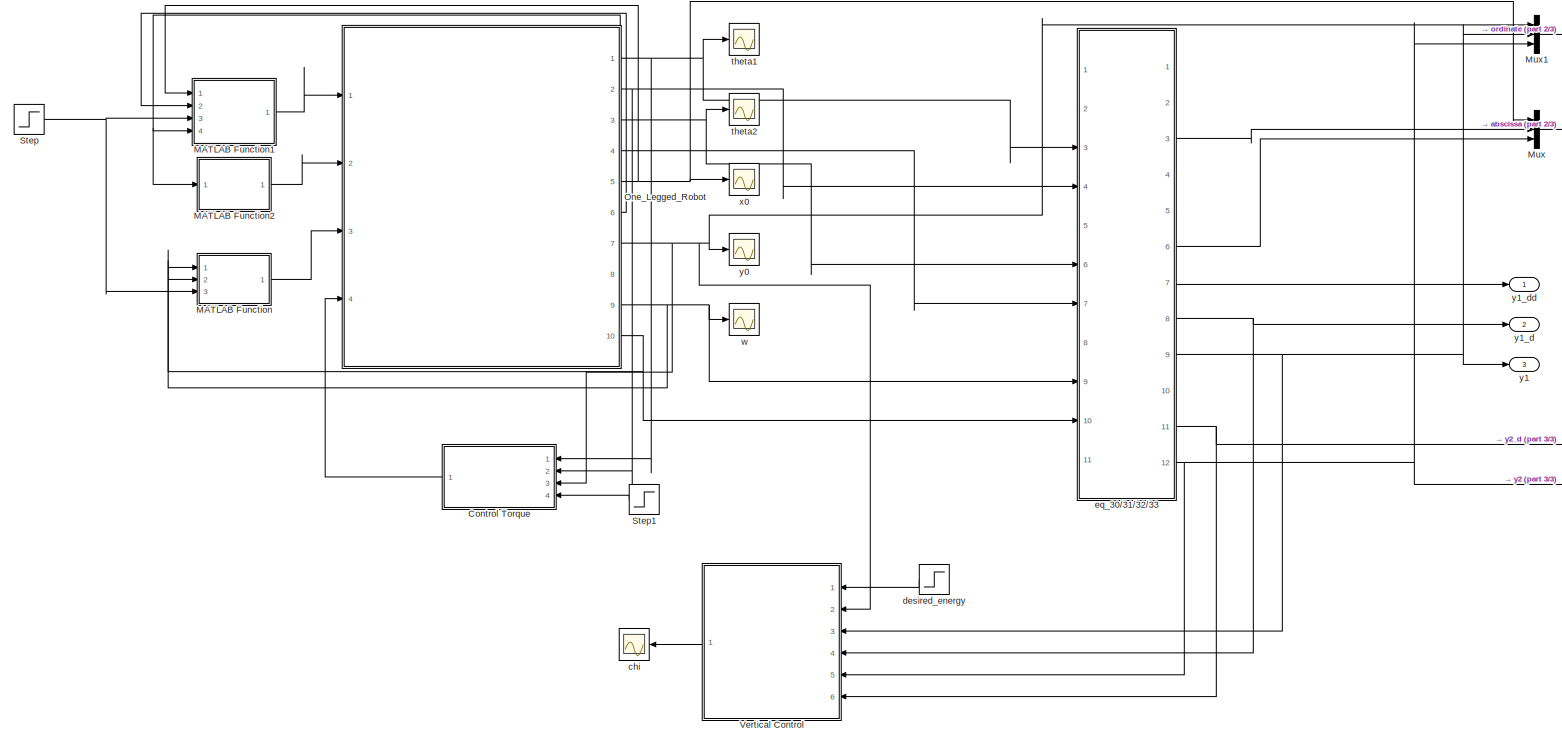
[diagram: root canvas - part 1/3, most of the canvas]
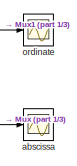
[diagram: root canvas - part 2/3, top right region]
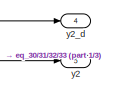
[diagram: root canvas - part 3/3, middle right region]
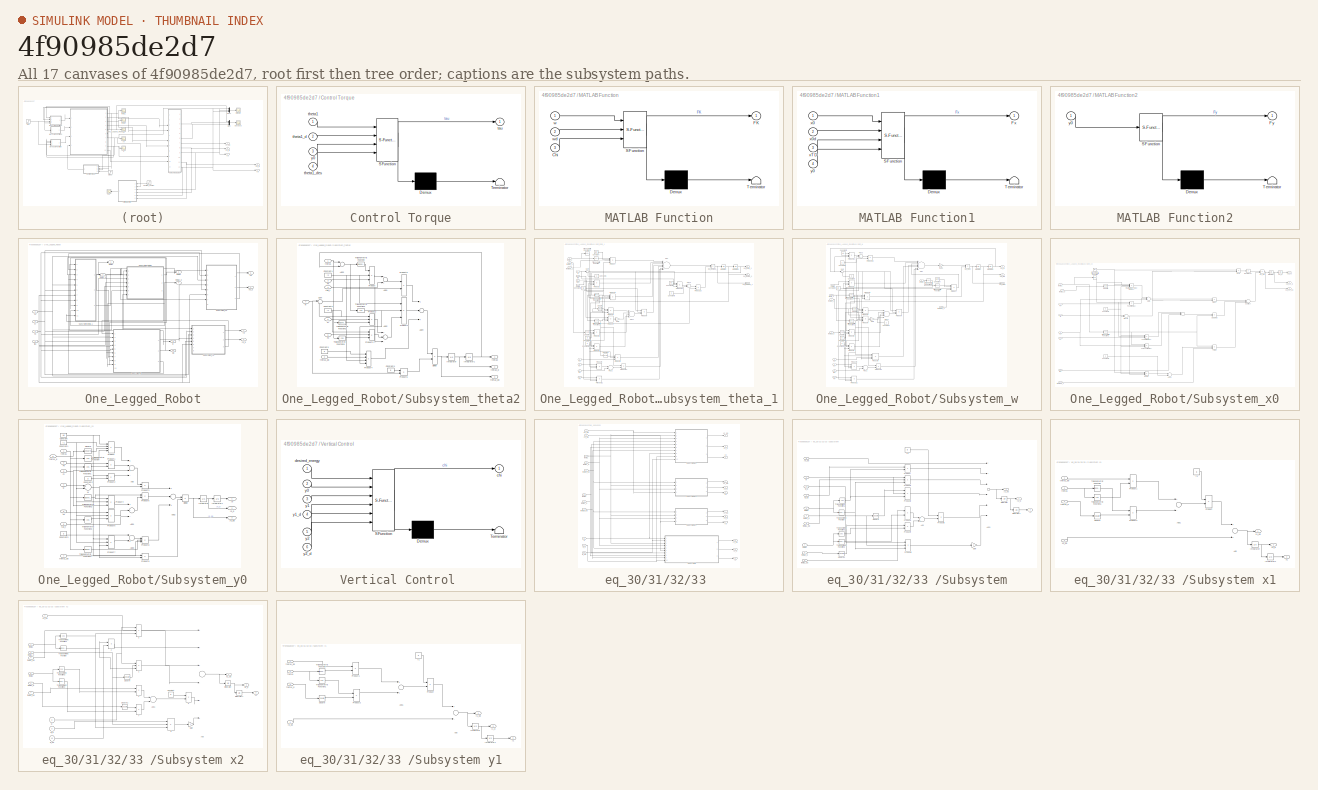
[diagram: thumbnail index - all 17 canvases of the model, root first then tree order]
MODEL slx_4f90985de2d7
KIND model
CONFIG AbsTol = auto
CONFIG EnableMultiTasking = off
CONFIG FixedStep = auto
CONFIG MaxStep = auto
CONFIG MinStep = auto
CONFIG RelTol = 1e-3
CONFIG SampleTimeConstraint = Unconstrained
CONFIG Solver = VariableStepAuto
CONFIG SolverName = VariableStepAuto
CONFIG StartTime = 0.0
CONFIG StopTime = 10.0
BLOCK [SubSystem] Control Torque
  ErrorFcn = Stateflow.Translate.translate
  PermitHierarchicalResolution = ExplicitOnly
  Ports = [4, 1]
  RequestExecContextInheritance = off
  SFBlockType = MATLAB Function
  TreatAsAtomicUnit = on
BLOCK [Demux] Control Torque/ Demux 
  Outputs = 1
  Ports = [1, 1]
BLOCK [S-Function] Control Torque/ SFunction 
  EnableBusSupport = on
  FunctionName = sf_sfun
  PortCounts = [4 2]
  Ports = [4, 2]
  SFcnIsStateOwnerBlock = off
  SFunctionDeploymentMode = off
  Tag = Stateflow S-Function 4
BLOCK [Terminator] Control Torque/ Terminator 
BLOCK [Outport] Control Torque/tau
  IconDisplay = Port number
BLOCK [Inport] Control Torque/theta1
  IconDisplay = Port number
BLOCK [Inport] Control Torque/theta1_d
  IconDisplay = Port number
  Port = 2
BLOCK [Inport] Control Torque/theta1_des
  IconDisplay = Port number
  Port = 4
BLOCK [Inport] Control Torque/y0
  IconDisplay = Port number
  Port = 3
BLOCK [SubSystem] MATLAB Function
  ErrorFcn = Stateflow.Translate.translate
  PermitHierarchicalResolution = ExplicitOnly
  Ports = [3, 1]
  RequestExecContextInheritance = off
  SFBlockType = MATLAB Function
  TreatAsAtomicUnit = on
BLOCK [Demux] MATLAB Function/ Demux 
  Outputs = 1
  Ports = [1, 1]
BLOCK [S-Function] MATLAB Function/ SFunction 
  EnableBusSupport = on
  FunctionName = sf_sfun
  PortCounts = [3 2]
  Ports = [3, 2]
  SFcnIsStateOwnerBlock = off
  SFunctionDeploymentMode = off
  Tag = Stateflow S-Function 2
BLOCK [Terminator] MATLAB Function/ Terminator 
BLOCK [Inport] MATLAB Function/Chi
  IconDisplay = Port number
  Port = 3
BLOCK [Outport] MATLAB Function/FK
  IconDisplay = Port number
BLOCK [Inport] MATLAB Function/w
  IconDisplay = Port number
BLOCK [Inport] MATLAB Function/wd
  IconDisplay = Port number
  Port = 2
BLOCK [SubSystem] MATLAB Function1
  ErrorFcn = Stateflow.Translate.translate
  PermitHierarchicalResolution = ExplicitOnly
  Ports = [4, 1]
  RequestExecContextInheritance = off
  SFBlockType = MATLAB Function
  TreatAsAtomicUnit = on
BLOCK [Demux] MATLAB Function1/ Demux 
  Outputs = 1
  Ports = [1, 1]
BLOCK [S-Function] MATLAB Function1/ SFunction 
  EnableBusSupport = on
  FunctionName = sf_sfun
  PortCounts = [4 2]
  Ports = [4, 2]
  SFcnIsStateOwnerBlock = off
  SFunctionDeploymentMode = off
  Tag = Stateflow S-Function 1
BLOCK [Terminator] MATLAB Function1/ Terminator 
BLOCK [Outport] MATLAB Function1/Fx
  IconDisplay = Port number
BLOCK [Inport] MATLAB Function1/x0
  IconDisplay = Port number
BLOCK [Inport] MATLAB Function1/x0d
  IconDisplay = Port number
  Port = 2
BLOCK [Inport] MATLAB Function1/xTD
  IconDisplay = Port number
  Port = 3
BLOCK [Inport] MATLAB Function1/y0
  IconDisplay = Port number
  Port = 4
BLOCK [SubSystem] MATLAB Function2
  ErrorFcn = Stateflow.Translate.translate
  PermitHierarchicalResolution = ExplicitOnly
  Ports = [1, 1]
  RequestExecContextInheritance = off
  SFBlockType = MATLAB Function
  TreatAsAtomicUnit = on
BLOCK [Demux] MATLAB Function2/ Demux 
  Outputs = 1
  Ports = [1, 1]
BLOCK [S-Function] MATLAB Function2/ SFunction 
  EnableBusSupport = on
  FunctionName = sf_sfun
  PortCounts = [1 2]
  Ports = [1, 2]
  SFcnIsStateOwnerBlock = off
  SFunctionDeploymentMode = off
  Tag = Stateflow S-Function 3
BLOCK [Terminator] MATLAB Function2/ Terminator 
BLOCK [Outport] MATLAB Function2/Fy
  IconDisplay = Port number
BLOCK [Inport] MATLAB Function2/y0
  IconDisplay = Port number
BLOCK [Mux] Mux
  DisplayOption = bar
  Inputs = 3
  Ports = [3, 1]
BLOCK [Mux] Mux1
  DisplayOption = bar
  Inputs = 3
  Ports = [3, 1]
BLOCK [SubSystem] One_Legged_Robot
  Ports = [4, 10]
  RequestExecContextInheritance = off
BLOCK [Inport] One_Legged_Robot/Fk
  IconDisplay = Port number
  Port = 3
BLOCK [Inport] One_Legged_Robot/Fx
  IconDisplay = Port number
BLOCK [Inport] One_Legged_Robot/Fy
  IconDisplay = Port number
  Port = 2
BLOCK [SubSystem] One_Legged_Robot/Subsystem_theta2
  Ports = [7, 3]
  RequestExecContextInheritance = off
BLOCK [Sum] One_Legged_Robot/Subsystem_theta2/Add1
  InputSameDT = off
  OutDataTypeStr = Inherit: Inherit via internal rule
  Ports = [2, 1]
  SaturateOnIntegerOverflow = off
BLOCK [Sum] One_Legged_Robot/Subsystem_theta2/Add2
  InputSameDT = off
  Inputs = +--
  OutDataTypeStr = Inherit: Inherit via internal rule
  Ports = [3, 1]
  SaturateOnIntegerOverflow = off
BLOCK [Sum] One_Legged_Robot/Subsystem_theta2/Add3
  InputSameDT = off
  Inputs = -+
  OutDataTypeStr = Inherit: Inherit via internal rule
  Ports = [2, 1]
  SaturateOnIntegerOverflow = off
BLOCK [Sum] One_Legged_Robot/Subsystem_theta2/Add4
  InputSameDT = off
  Inputs = +-+
  OutDataTypeStr = Inherit: Inherit via internal rule
  Ports = [3, 1]
  SaturateOnIntegerOverflow = off
BLOCK [Constant] One_Legged_Robot/Subsystem_theta2/Constant1
  Value = r2
BLOCK [Constant] One_Legged_Robot/Subsystem_theta2/Constant2
  Value = r1
BLOCK [Constant] One_Legged_Robot/Subsystem_theta2/Constant3
  Value = I1
BLOCK [Constant] One_Legged_Robot/Subsystem_theta2/Constant4
  Value = I2
BLOCK [Product] One_Legged_Robot/Subsystem_theta2/Divide
  InputSameDT = off
  Inputs = */
  OutDataTypeStr = Inherit: Inherit via internal rule
  Ports = [2, 1]
  RndMeth = Floor
  SaturateOnIntegerOverflow = off
BLOCK [Inport] One_Legged_Robot/Subsystem_theta2/Fk
  IconDisplay = Port number
  Port = 3
BLOCK [Inport] One_Legged_Robot/Subsystem_theta2/Fx
  IconDisplay = Port number
  Port = 6
BLOCK [Inport] One_Legged_Robot/Subsystem_theta2/Fy
  IconDisplay = Port number
  Port = 5
BLOCK [Integrator] One_Legged_Robot/Subsystem_theta2/Integrator
  InitialCondition = ini_theta2_d
  Ports = [1, 1]
BLOCK [Integrator] One_Legged_Robot/Subsystem_theta2/Integrator1
  InitialCondition = ini_theta2
  LimitOutput = on
  LowerSaturationLimit = -pi/4
  Ports = [1, 1]
  UpperSaturationLimit = pi/4
BLOCK [Product] One_Legged_Robot/Subsystem_theta2/Product
  InputSameDT = off
  Inputs = 3
  OutDataTypeStr = Inherit: Inherit via internal rule
  Ports = [3, 1]
  RndMeth = Floor
  SaturateOnIntegerOverflow = off
BLOCK [Product] One_Legged_Robot/Subsystem_theta2/Product1
  InputSameDT = off
  Inputs = 3
  OutDataTypeStr = Inherit: Inherit via internal rule
  Ports = [3, 1]
  RndMeth = Floor
  SaturateOnIntegerOverflow = off
BLOCK [Product] One_Legged_Robot/Subsystem_theta2/Product2
  InputSameDT = off
  Inputs = 3
  OutDataTypeStr = Inherit: Inherit via internal rule
  Ports = [3, 1]
  RndMeth = Floor
  SaturateOnIntegerOverflow = off
BLOCK [Product] One_Legged_Robot/Subsystem_theta2/Product3
  InputSameDT = off
  Inputs = 3
  OutDataTypeStr = Inherit: Inherit via internal rule
  Ports = [3, 1]
  RndMeth = Floor
  SaturateOnIntegerOverflow = off
BLOCK [Product] One_Legged_Robot/Subsystem_theta2/Product4
  InputSameDT = off
  Inputs = 4
  OutDataTypeStr = Inherit: Inherit via internal rule
  Ports = [4, 1]
  RndMeth = Floor
  SaturateOnIntegerOverflow = off
BLOCK [Product] One_Legged_Robot/Subsystem_theta2/Product5
  InputSameDT = off
  OutDataTypeStr = Inherit: Inherit via internal rule
  Ports = [2, 1]
  RndMeth = Floor
  SaturateOnIntegerOverflow = off
BLOCK [Product] One_Legged_Robot/Subsystem_theta2/Product6
  InputSameDT = off
  OutDataTypeStr = Inherit: Inherit via internal rule
  Ports = [2, 1]
  RndMeth = Floor
  SaturateOnIntegerOverflow = off
BLOCK [Sum] One_Legged_Robot/Subsystem_theta2/Sum
  IconShape = round
  InputSameDT = off
  Inputs = |+-
  OutDataTypeStr = Inherit: Inherit via internal rule
  Ports = [2, 1]
  SaturateOnIntegerOverflow = off
BLOCK [Trigonometry] One_Legged_Robot/Subsystem_theta2/Trigonometric Function
  Ports = [1, 1]
BLOCK [Trigonometry] One_Legged_Robot/Subsystem_theta2/Trigonometric Function1
  Operator = cos
  Ports = [1, 1]
BLOCK [Trigonometry] One_Legged_Robot/Subsystem_theta2/Trigonometric Function2
  Ports = [1, 1]
BLOCK [Trigonometry] One_Legged_Robot/Subsystem_theta2/Trigonometric Function3
  Operator = cos
  Ports = [1, 1]
BLOCK [Inport] One_Legged_Robot/Subsystem_theta2/tao_t
  IconDisplay = Port number
  Port = 4
BLOCK [Inport] One_Legged_Robot/Subsystem_theta2/theta1
  IconDisplay = Port number
BLOCK [Inport] One_Legged_Robot/Subsystem_theta2/theta1_dd
  IconDisplay = Port number
  Port = 2
BLOCK [Outport] One_Legged_Robot/Subsystem_theta2/theta2
  IconDisplay = Port number
  VectorParamsAs1DForOutWhenUnconnected = off
BLOCK [Outport] One_Legged_Robot/Subsystem_theta2/theta2_d
  IconDisplay = Port number
  Port = 2
  VectorParamsAs1DForOutWhenUnconnected = off
BLOCK [Outport] One_Legged_Robot/Subsystem_theta2/theta2_dd
  IconDisplay = Port number
  Port = 3
  VectorParamsAs1DForOutWhenUnconnected = off
BLOCK [Inport] One_Legged_Robot/Subsystem_theta2/w
  IconDisplay = Port number
  Port = 7
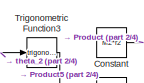
[diagram: One_Legged_Robot/Subsystem_theta_1 - part 1/4, top left region]
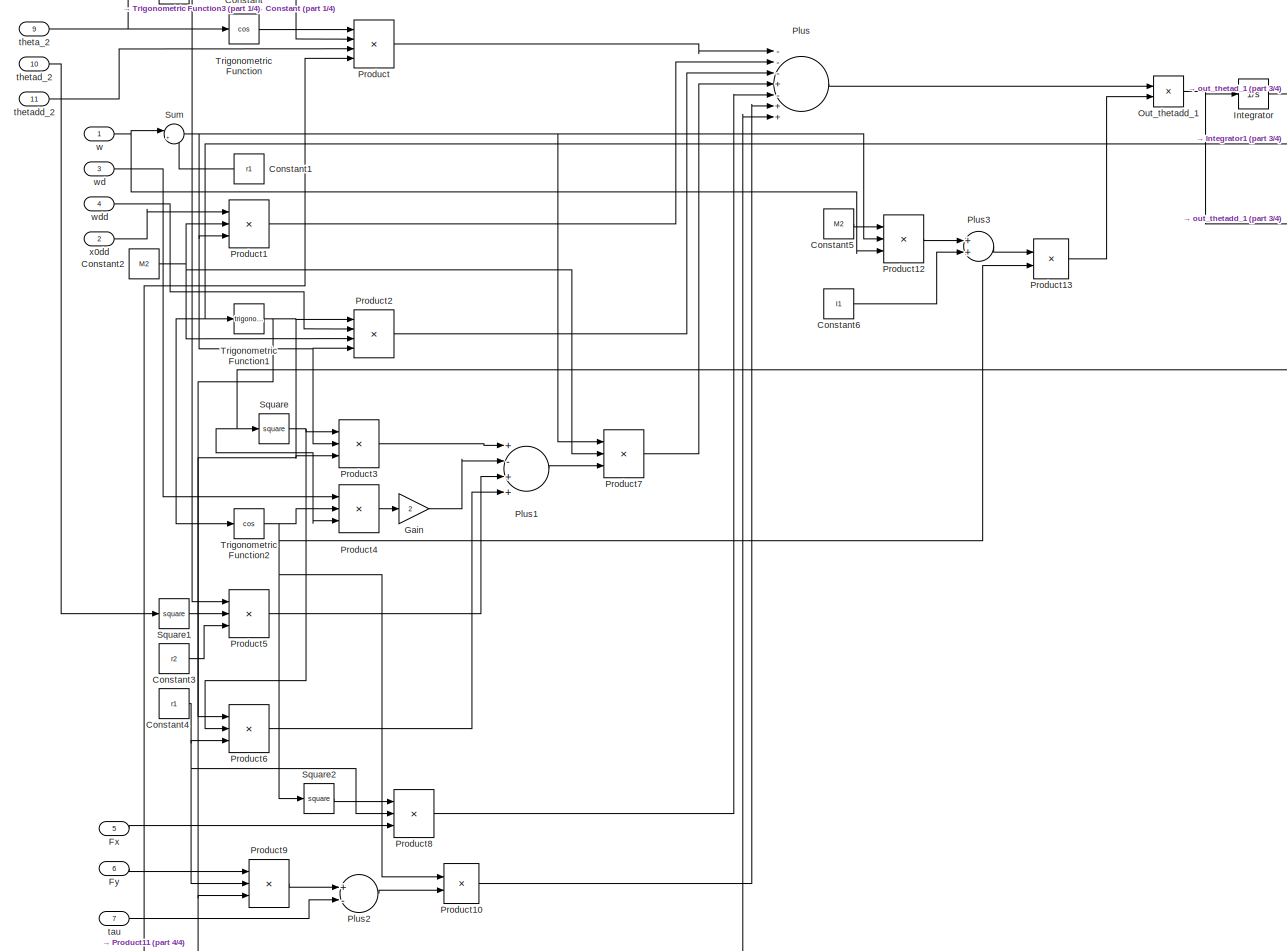
[diagram: One_Legged_Robot/Subsystem_theta_1 - part 2/4, most of the canvas]
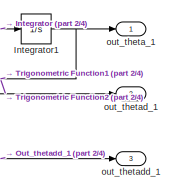
[diagram: One_Legged_Robot/Subsystem_theta_1 - part 3/4, top right region]
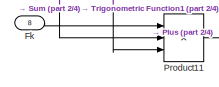
[diagram: One_Legged_Robot/Subsystem_theta_1 - part 4/4, bottom left region]
BLOCK [SubSystem] One_Legged_Robot/Subsystem_theta_1
  Ports = [11, 3]
  RequestExecContextInheritance = off
BLOCK [Constant] One_Legged_Robot/Subsystem_theta_1/Constant
  Value = M2*r2
BLOCK [Constant] One_Legged_Robot/Subsystem_theta_1/Constant1
  Value = r1
BLOCK [Constant] One_Legged_Robot/Subsystem_theta_1/Constant2
  Value = M2
BLOCK [Constant] One_Legged_Robot/Subsystem_theta_1/Constant3
  Value = r2
BLOCK [Constant] One_Legged_Robot/Subsystem_theta_1/Constant4
  Value = r1
BLOCK [Constant] One_Legged_Robot/Subsystem_theta_1/Constant5
  Value = M2
BLOCK [Constant] One_Legged_Robot/Subsystem_theta_1/Constant6
  Value = I1
BLOCK [Inport] One_Legged_Robot/Subsystem_theta_1/Fk
  IconDisplay = Port number
  Port = 8
BLOCK [Inport] One_Legged_Robot/Subsystem_theta_1/Fx
  IconDisplay = Port number
  Port = 5
BLOCK [Inport] One_Legged_Robot/Subsystem_theta_1/Fy
  IconDisplay = Port number
  Port = 6
BLOCK [Gain] One_Legged_Robot/Subsystem_theta_1/Gain
  Gain = 2
  OutDataTypeStr = Inherit: Inherit via internal rule
  ParamDataTypeStr = Inherit: Inherit via internal rule
  SaturateOnIntegerOverflow = off
BLOCK [Integrator] One_Legged_Robot/Subsystem_theta_1/Integrator
  InitialCondition = ini_theta1_d
  Ports = [1, 1]
BLOCK [Integrator] One_Legged_Robot/Subsystem_theta_1/Integrator1
  InitialCondition = ini_theta1
  LimitOutput = on
  LowerSaturationLimit = -pi/4
  Ports = [1, 1]
  UpperSaturationLimit = pi/4
BLOCK [Product] One_Legged_Robot/Subsystem_theta_1/Out_thetadd_1
  InputSameDT = off
  Inputs = */
  OutDataTypeStr = Inherit: Inherit via internal rule
  Ports = [2, 1]
  RndMeth = Floor
  SaturateOnIntegerOverflow = off
BLOCK [Sum] One_Legged_Robot/Subsystem_theta_1/Plus
  InputSameDT = off
  Inputs = ---+-++
  OutDataTypeStr = Inherit: Inherit via internal rule
  Ports = [7, 1]
  SaturateOnIntegerOverflow = off
BLOCK [Sum] One_Legged_Robot/Subsystem_theta_1/Plus1
  InputSameDT = off
  Inputs = +-++
  OutDataTypeStr = Inherit: Inherit via internal rule
  Ports = [4, 1]
  SaturateOnIntegerOverflow = off
BLOCK [Sum] One_Legged_Robot/Subsystem_theta_1/Plus2
  InputSameDT = off
  Inputs = +-
  OutDataTypeStr = Inherit: Inherit via internal rule
  Ports = [2, 1]
  SaturateOnIntegerOverflow = off
BLOCK [Sum] One_Legged_Robot/Subsystem_theta_1/Plus3
  InputSameDT = off
  OutDataTypeStr = Inherit: Inherit via internal rule
  Ports = [2, 1]
  SaturateOnIntegerOverflow = off
BLOCK [Product] One_Legged_Robot/Subsystem_theta_1/Product
  InputSameDT = off
  Inputs = 4
  OutDataTypeStr = Inherit: Inherit via internal rule
  Ports = [4, 1]
  RndMeth = Floor
  SaturateOnIntegerOverflow = off
BLOCK [Product] One_Legged_Robot/Subsystem_theta_1/Product1
  InputSameDT = off
  Inputs = 3
  OutDataTypeStr = Inherit: Inherit via internal rule
  Ports = [3, 1]
  RndMeth = Floor
  SaturateOnIntegerOverflow = off
BLOCK [Product] One_Legged_Robot/Subsystem_theta_1/Product10
  InputSameDT = off
  OutDataTypeStr = Inherit: Inherit via internal rule
  Ports = [2, 1]
  RndMeth = Floor
  SaturateOnIntegerOverflow = off
BLOCK [Product] One_Legged_Robot/Subsystem_theta_1/Product11
  InputSameDT = off
  Inputs = 3
  OutDataTypeStr = Inherit: Inherit via internal rule
  Ports = [3, 1]
  RndMeth = Floor
  SaturateOnIntegerOverflow = off
BLOCK [Product] One_Legged_Robot/Subsystem_theta_1/Product12
  InputSameDT = off
  Inputs = 3
  OutDataTypeStr = Inherit: Inherit via internal rule
  Ports = [3, 1]
  RndMeth = Floor
  SaturateOnIntegerOverflow = off
BLOCK [Product] One_Legged_Robot/Subsystem_theta_1/Product13
  InputSameDT = off
  OutDataTypeStr = Inherit: Inherit via internal rule
  Ports = [2, 1]
  RndMeth = Floor
  SaturateOnIntegerOverflow = off
BLOCK [Product] One_Legged_Robot/Subsystem_theta_1/Product2
  InputSameDT = off
  Inputs = 4
  OutDataTypeStr = Inherit: Inherit via internal rule
  Ports = [4, 1]
  RndMeth = Floor
  SaturateOnIntegerOverflow = off
BLOCK [Product] One_Legged_Robot/Subsystem_theta_1/Product3
  InputSameDT = off
  Inputs = 3
  OutDataTypeStr = Inherit: Inherit via internal rule
  Ports = [3, 1]
  RndMeth = Floor
  SaturateOnIntegerOverflow = off
BLOCK [Product] One_Legged_Robot/Subsystem_theta_1/Product4
  InputSameDT = off
  Inputs = 3
  OutDataTypeStr = Inherit: Inherit via internal rule
  Ports = [3, 1]
  RndMeth = Floor
  SaturateOnIntegerOverflow = off
BLOCK [Product] One_Legged_Robot/Subsystem_theta_1/Product5
  InputSameDT = off
  Inputs = 3
  OutDataTypeStr = Inherit: Inherit via internal rule
  Ports = [3, 1]
  RndMeth = Floor
  SaturateOnIntegerOverflow = off
BLOCK [Product] One_Legged_Robot/Subsystem_theta_1/Product6
  InputSameDT = off
  Inputs = 3
  OutDataTypeStr = Inherit: Inherit via internal rule
  Ports = [3, 1]
  RndMeth = Floor
  SaturateOnIntegerOverflow = off
BLOCK [Product] One_Legged_Robot/Subsystem_theta_1/Product7
  InputSameDT = off
  Inputs = 3
  OutDataTypeStr = Inherit: Inherit via internal rule
  Ports = [3, 1]
  RndMeth = Floor
  SaturateOnIntegerOverflow = off
BLOCK [Product] One_Legged_Robot/Subsystem_theta_1/Product8
  InputSameDT = off
  Inputs = 3
  OutDataTypeStr = Inherit: Inherit via internal rule
  Ports = [3, 1]
  RndMeth = Floor
  SaturateOnIntegerOverflow = off
BLOCK [Product] One_Legged_Robot/Subsystem_theta_1/Product9
  InputSameDT = off
  Inputs = 3
  OutDataTypeStr = Inherit: Inherit via internal rule
  Ports = [3, 1]
  RndMeth = Floor
  SaturateOnIntegerOverflow = off
BLOCK [Math] One_Legged_Robot/Subsystem_theta_1/Square
  Operator = square
  Ports = [1, 1]
  SignedPower = off
BLOCK [Math] One_Legged_Robot/Subsystem_theta_1/Square1
  Operator = square
  Ports = [1, 1]
  SignedPower = off
BLOCK [Math] One_Legged_Robot/Subsystem_theta_1/Square2
  Operator = square
  Ports = [1, 1]
  SignedPower = off
BLOCK [Sum] One_Legged_Robot/Subsystem_theta_1/Sum
  IconShape = round
  InputSameDT = off
  Inputs = |+-
  OutDataTypeStr = Inherit: Inherit via internal rule
  Ports = [2, 1]
  SaturateOnIntegerOverflow = off
BLOCK [Trigonometry] One_Legged_Robot/Subsystem_theta_1/Trigonometric Function
  Operator = cos
  Ports = [1, 1]
BLOCK [Trigonometry] One_Legged_Robot/Subsystem_theta_1/Trigonometric Function1
  Ports = [1, 1]
BLOCK [Trigonometry] One_Legged_Robot/Subsystem_theta_1/Trigonometric Function2
  Operator = cos
  Ports = [1, 1]
BLOCK [Trigonometry] One_Legged_Robot/Subsystem_theta_1/Trigonometric Function3
  Ports = [1, 1]
BLOCK [Outport] One_Legged_Robot/Subsystem_theta_1/out_theta_1
  IconDisplay = Port number
BLOCK [Outport] One_Legged_Robot/Subsystem_theta_1/out_thetad_1
  IconDisplay = Port number
  Port = 2
BLOCK [Outport] One_Legged_Robot/Subsystem_theta_1/out_thetadd_1
  IconDisplay = Port number
  Port = 3
BLOCK [Inport] One_Legged_Robot/Subsystem_theta_1/tau
  IconDisplay = Port number
  Port = 7
BLOCK [Inport] One_Legged_Robot/Subsystem_theta_1/theta_2
  IconDisplay = Port number
  Port = 9
BLOCK [Inport] One_Legged_Robot/Subsystem_theta_1/thetad_2
  IconDisplay = Port number
  Port = 10
BLOCK [Inport] One_Legged_Robot/Subsystem_theta_1/thetadd_2
  IconDisplay = Port number
  Port = 11
BLOCK [Inport] One_Legged_Robot/Subsystem_theta_1/w
  IconDisplay = Port number
BLOCK [Inport] One_Legged_Robot/Subsystem_theta_1/wd
  IconDisplay = Port number
  Port = 3
BLOCK [Inport] One_Legged_Robot/Subsystem_theta_1/wdd
  IconDisplay = Port number
  Port = 4
BLOCK [Inport] One_Legged_Robot/Subsystem_theta_1/x0dd
  IconDisplay = Port number
  Port = 2
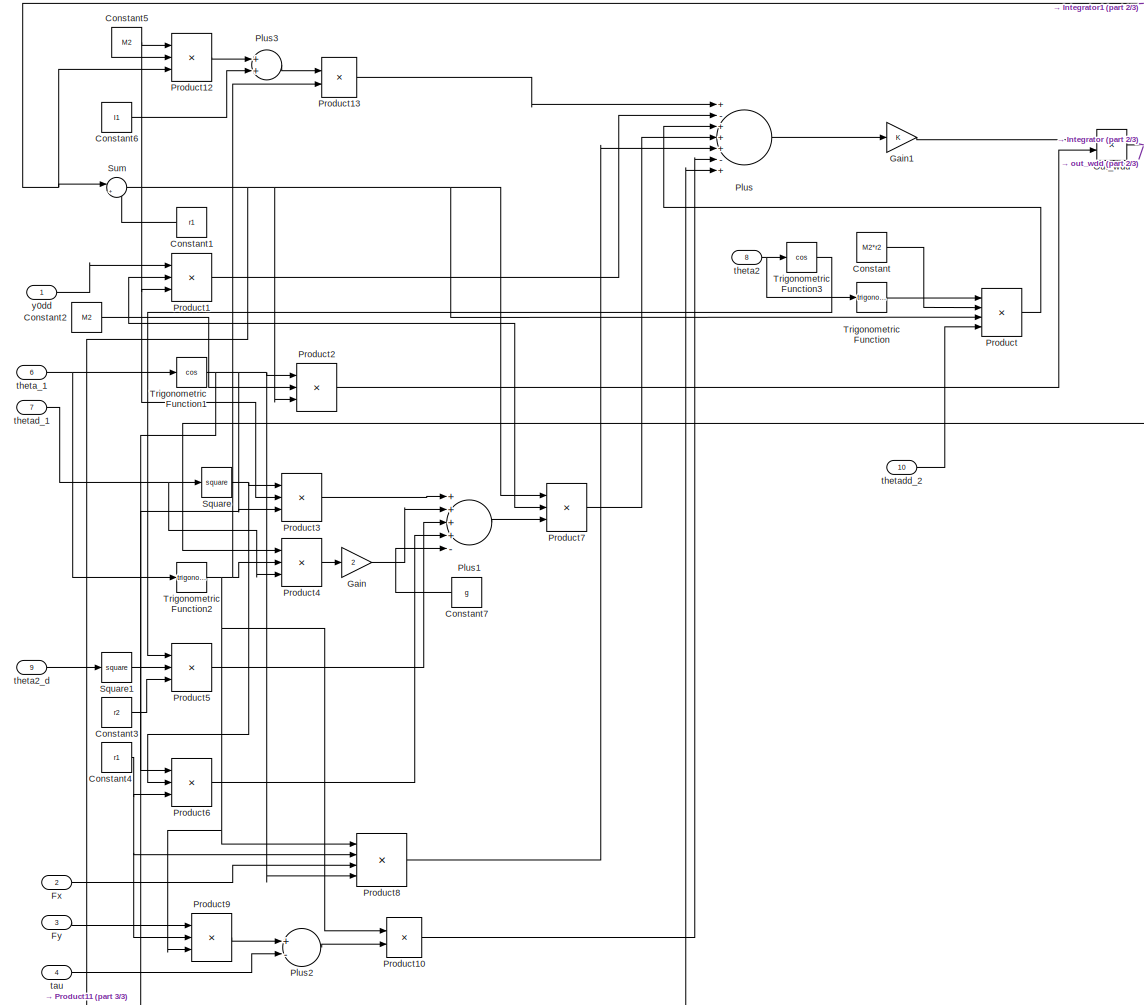
[diagram: One_Legged_Robot/Subsystem_w - part 1/3, most of the canvas]
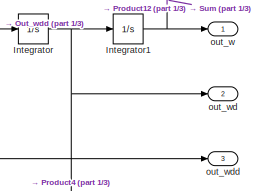
[diagram: One_Legged_Robot/Subsystem_w - part 2/3, top right region]
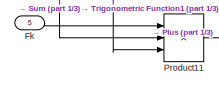
[diagram: One_Legged_Robot/Subsystem_w - part 3/3, bottom left region]
BLOCK [SubSystem] One_Legged_Robot/Subsystem_w
  Ports = [10, 3]
  RequestExecContextInheritance = off
BLOCK [Constant] One_Legged_Robot/Subsystem_w/Constant
  Value = M2*r2
BLOCK [Constant] One_Legged_Robot/Subsystem_w/Constant1
  Value = r1
BLOCK [Constant] One_Legged_Robot/Subsystem_w/Constant2
  Value = M2
BLOCK [Constant] One_Legged_Robot/Subsystem_w/Constant3
  Value = r2
BLOCK [Constant] One_Legged_Robot/Subsystem_w/Constant4
  Value = r1
BLOCK [Constant] One_Legged_Robot/Subsystem_w/Constant5
  Value = M2
BLOCK [Constant] One_Legged_Robot/Subsystem_w/Constant6
  Value = I1
BLOCK [Constant] One_Legged_Robot/Subsystem_w/Constant7
  Value = g
BLOCK [Inport] One_Legged_Robot/Subsystem_w/Fk
  IconDisplay = Port number
  Port = 5
BLOCK [Inport] One_Legged_Robot/Subsystem_w/Fx
  IconDisplay = Port number
  Port = 2
BLOCK [Inport] One_Legged_Robot/Subsystem_w/Fy
  IconDisplay = Port number
  Port = 3
BLOCK [Gain] One_Legged_Robot/Subsystem_w/Gain
  Gain = 2
  OutDataTypeStr = Inherit: Inherit via internal rule
  ParamDataTypeStr = Inherit: Inherit via internal rule
  SaturateOnIntegerOverflow = off
BLOCK [Gain] One_Legged_Robot/Subsystem_w/Gain1
  OutDataTypeStr = Inherit: Inherit via internal rule
  ParamDataTypeStr = Inherit: Inherit via internal rule
  SaturateOnIntegerOverflow = off
BLOCK [Integrator] One_Legged_Robot/Subsystem_w/Integrator
  InitialCondition = ini_w_d
  Ports = [1, 1]
BLOCK [Integrator] One_Legged_Robot/Subsystem_w/Integrator1
  InitialCondition = ini_w
  LowerSaturationLimit = -pi/4
  Ports = [1, 1]
  UpperSaturationLimit = pi/4
BLOCK [Product] One_Legged_Robot/Subsystem_w/Out_wdd
  InputSameDT = off
  Inputs = */
  OutDataTypeStr = Inherit: Inherit via internal rule
  Ports = [2, 1]
  RndMeth = Floor
  SaturateOnIntegerOverflow = off
BLOCK [Sum] One_Legged_Robot/Subsystem_w/Plus
  InputSameDT = off
  Inputs = +-+++-+
  OutDataTypeStr = Inherit: Inherit via internal rule
  Ports = [7, 1]
  SaturateOnIntegerOverflow = off
BLOCK [Sum] One_Legged_Robot/Subsystem_w/Plus1
  InputSameDT = off
  Inputs = ++++-
  OutDataTypeStr = Inherit: Inherit via internal rule
  Ports = [5, 1]
  SaturateOnIntegerOverflow = off
BLOCK [Sum] One_Legged_Robot/Subsystem_w/Plus2
  InputSameDT = off
  Inputs = +-
  OutDataTypeStr = Inherit: Inherit via internal rule
  Ports = [2, 1]
  SaturateOnIntegerOverflow = off
BLOCK [Sum] One_Legged_Robot/Subsystem_w/Plus3
  InputSameDT = off
  OutDataTypeStr = Inherit: Inherit via internal rule
  Ports = [2, 1]
  SaturateOnIntegerOverflow = off
BLOCK [Product] One_Legged_Robot/Subsystem_w/Product
  InputSameDT = off
  Inputs = 4
  OutDataTypeStr = Inherit: Inherit via internal rule
  Ports = [4, 1]
  RndMeth = Floor
  SaturateOnIntegerOverflow = off
BLOCK [Product] One_Legged_Robot/Subsystem_w/Product1
  InputSameDT = off
  Inputs = 3
  OutDataTypeStr = Inherit: Inherit via internal rule
  Ports = [3, 1]
  RndMeth = Floor
  SaturateOnIntegerOverflow = off
BLOCK [Product] One_Legged_Robot/Subsystem_w/Product10
  InputSameDT = off
  OutDataTypeStr = Inherit: Inherit via internal rule
  Ports = [2, 1]
  RndMeth = Floor
  SaturateOnIntegerOverflow = off
BLOCK [Product] One_Legged_Robot/Subsystem_w/Product11
  InputSameDT = off
  Inputs = 3
  OutDataTypeStr = Inherit: Inherit via internal rule
  Ports = [3, 1]
  RndMeth = Floor
  SaturateOnIntegerOverflow = off
BLOCK [Product] One_Legged_Robot/Subsystem_w/Product12
  InputSameDT = off
  Inputs = 3
  OutDataTypeStr = Inherit: Inherit via internal rule
  Ports = [3, 1]
  RndMeth = Floor
  SaturateOnIntegerOverflow = off
BLOCK [Product] One_Legged_Robot/Subsystem_w/Product13
  InputSameDT = off
  OutDataTypeStr = Inherit: Inherit via internal rule
  Ports = [2, 1]
  RndMeth = Floor
  SaturateOnIntegerOverflow = off
BLOCK [Product] One_Legged_Robot/Subsystem_w/Product2
  InputSameDT = off
  Inputs = 3
  OutDataTypeStr = Inherit: Inherit via internal rule
  Ports = [3, 1]
  RndMeth = Floor
  SaturateOnIntegerOverflow = off
BLOCK [Product] One_Legged_Robot/Subsystem_w/Product3
  InputSameDT = off
  Inputs = 3
  OutDataTypeStr = Inherit: Inherit via internal rule
  Ports = [3, 1]
  RndMeth = Floor
  SaturateOnIntegerOverflow = off
BLOCK [Product] One_Legged_Robot/Subsystem_w/Product4
  InputSameDT = off
  Inputs = 3
  OutDataTypeStr = Inherit: Inherit via internal rule
  Ports = [3, 1]
  RndMeth = Floor
  SaturateOnIntegerOverflow = off
BLOCK [Product] One_Legged_Robot/Subsystem_w/Product5
  InputSameDT = off
  Inputs = 3
  OutDataTypeStr = Inherit: Inherit via internal rule
  Ports = [3, 1]
  RndMeth = Floor
  SaturateOnIntegerOverflow = off
BLOCK [Product] One_Legged_Robot/Subsystem_w/Product6
  InputSameDT = off
  Inputs = 3
  OutDataTypeStr = Inherit: Inherit via internal rule
  Ports = [3, 1]
  RndMeth = Floor
  SaturateOnIntegerOverflow = off
BLOCK [Product] One_Legged_Robot/Subsystem_w/Product7
  InputSameDT = off
  Inputs = 3
  OutDataTypeStr = Inherit: Inherit via internal rule
  Ports = [3, 1]
  RndMeth = Floor
  SaturateOnIntegerOverflow = off
BLOCK [Product] One_Legged_Robot/Subsystem_w/Product8
  InputSameDT = off
  Inputs = 4
  OutDataTypeStr = Inherit: Inherit via internal rule
  Ports = [4, 1]
  RndMeth = Floor
  SaturateOnIntegerOverflow = off
BLOCK [Product] One_Legged_Robot/Subsystem_w/Product9
  InputSameDT = off
  Inputs = 3
  OutDataTypeStr = Inherit: Inherit via internal rule
  Ports = [3, 1]
  RndMeth = Floor
  SaturateOnIntegerOverflow = off
BLOCK [Math] One_Legged_Robot/Subsystem_w/Square
  Operator = square
  Ports = [1, 1]
  SignedPower = off
BLOCK [Math] One_Legged_Robot/Subsystem_w/Square1
  Operator = square
  Ports = [1, 1]
  SignedPower = off
BLOCK [Sum] One_Legged_Robot/Subsystem_w/Sum
  IconShape = round
  InputSameDT = off
  Inputs = |+-
  OutDataTypeStr = Inherit: Inherit via internal rule
  Ports = [2, 1]
  SaturateOnIntegerOverflow = off
BLOCK [Trigonometry] One_Legged_Robot/Subsystem_w/Trigonometric Function
  Ports = [1, 1]
BLOCK [Trigonometry] One_Legged_Robot/Subsystem_w/Trigonometric Function1
  Operator = cos
  Ports = [1, 1]
BLOCK [Trigonometry] One_Legged_Robot/Subsystem_w/Trigonometric Function2
  Ports = [1, 1]
BLOCK [Trigonometry] One_Legged_Robot/Subsystem_w/Trigonometric Function3
  Operator = cos
  Ports = [1, 1]
BLOCK [Outport] One_Legged_Robot/Subsystem_w/out_w
  IconDisplay = Port number
BLOCK [Outport] One_Legged_Robot/Subsystem_w/out_wd
  IconDisplay = Port number
  Port = 2
BLOCK [Outport] One_Legged_Robot/Subsystem_w/out_wdd
  IconDisplay = Port number
  Port = 3
BLOCK [Inport] One_Legged_Robot/Subsystem_w/tau
  IconDisplay = Port number
  Port = 4
BLOCK [Inport] One_Legged_Robot/Subsystem_w/theta2
  IconDisplay = Port number
  Port = 8
BLOCK [Inport] One_Legged_Robot/Subsystem_w/theta2_d
  IconDisplay = Port number
  Port = 9
BLOCK [Inport] One_Legged_Robot/Subsystem_w/theta_1
  IconDisplay = Port number
  Port = 6
BLOCK [Inport] One_Legged_Robot/Subsystem_w/thetad_1
  IconDisplay = Port number
  Port = 7
BLOCK [Inport] One_Legged_Robot/Subsystem_w/thetadd_2
  IconDisplay = Port number
  Port = 10
BLOCK [Inport] One_Legged_Robot/Subsystem_w/y0dd
  IconDisplay = Port number
BLOCK [SubSystem] One_Legged_Robot/Subsystem_x0
  Ports = [8, 3]
  RequestExecContextInheritance = off
BLOCK [Sum] One_Legged_Robot/Subsystem_x0/ 
  InputSameDT = off
  Inputs = +--
  OutDataTypeStr = Inherit: Inherit via internal rule
  Ports = [3, 1]
  SaturateOnIntegerOverflow = off
BLOCK [Product] One_Legged_Robot/Subsystem_x0/ SECOND
  InputSameDT = off
  OutDataTypeStr = Inherit: Inherit via internal rule
  Ports = [2, 1]
  RndMeth = Floor
  SaturateOnIntegerOverflow = off
BLOCK [Sum] One_Legged_Robot/Subsystem_x0/Add
  InputSameDT = off
  Inputs = +-+
  OutDataTypeStr = Inherit: Inherit via internal rule
  Ports = [3, 1]
  SaturateOnIntegerOverflow = off
BLOCK [Sum] One_Legged_Robot/Subsystem_x0/Add2
  InputSameDT = off
  Inputs = +-
  OutDataTypeStr = Inherit: Inherit via internal rule
  Ports = [2, 1]
  SaturateOnIntegerOverflow = off
BLOCK [Constant] One_Legged_Robot/Subsystem_x0/Constant
  Value = M1
BLOCK [Constant] One_Legged_Robot/Subsystem_x0/Constant1
  Value = r1
BLOCK [Constant] One_Legged_Robot/Subsystem_x0/Constant2
  Value = I1
BLOCK [Product] One_Legged_Robot/Subsystem_x0/FIRST
  InputSameDT = off
  OutDataTypeStr = Inherit: Inherit via internal rule
  Ports = [2, 1]
  RndMeth = Floor
  SaturateOnIntegerOverflow = off
BLOCK [Inport] One_Legged_Robot/Subsystem_x0/Fk
  IconDisplay = Port number
  Port = 2
BLOCK [Product] One_Legged_Robot/Subsystem_x0/Fk.sin(theta1)
  InputSameDT = off
  OutDataTypeStr = Inherit: Inherit via internal rule
  Ports = [2, 1]
  RndMeth = Floor
  SaturateOnIntegerOverflow = off
BLOCK [Inport] One_Legged_Robot/Subsystem_x0/Fx 
  IconDisplay = Port number
  Port = 3
BLOCK [Product] One_Legged_Robot/Subsystem_x0/Fx.r1.cos(theta1)
  InputSameDT = off
  Inputs = 3
  OutDataTypeStr = Inherit: Inherit via internal rule
  Ports = [3, 1]
  RndMeth = Floor
  SaturateOnIntegerOverflow = off
BLOCK [Inport] One_Legged_Robot/Subsystem_x0/Fy 
  IconDisplay = Port number
  Port = 5
BLOCK [Product] One_Legged_Robot/Subsystem_x0/Fy.r1.sin(theta1)
  InputSameDT = off
  Inputs = 3
  OutDataTypeStr = Inherit: Inherit via internal rule
  Ports = [3, 1]
  RndMeth = Floor
  SaturateOnIntegerOverflow = off
BLOCK [Integrator] One_Legged_Robot/Subsystem_x0/Integrator
  InitialCondition = ini_x0_d
  Ports = [1, 1]
BLOCK [Product] One_Legged_Robot/Subsystem_x0/M1.W
  InputSameDT = off
  OutDataTypeStr = Inherit: Inherit via internal rule
  Ports = [2, 1]
  RndMeth = Floor
  SaturateOnIntegerOverflow = off
BLOCK [Product] One_Legged_Robot/Subsystem_x0/M1.r1.W
  InputSameDT = off
  Inputs = 3
  OutDataTypeStr = Inherit: Inherit via internal rule
  Ports = [3, 1]
  RndMeth = Floor
  SaturateOnIntegerOverflow = off
BLOCK [Product] One_Legged_Robot/Subsystem_x0/Reciprocal
  InputSameDT = off
  Inputs = /
  OutDataTypeStr = Inherit: Inherit via internal rule
  Ports = [1, 1]
  RndMeth = Floor
  SaturateOnIntegerOverflow = off
BLOCK [Math] One_Legged_Robot/Subsystem_x0/Square
  Operator = square
  Ports = [1, 1]
  SignedPower = off
BLOCK [Sum] One_Legged_Robot/Subsystem_x0/Subtract
  InputSameDT = off
  Inputs = +--
  OutDataTypeStr = Inherit: Inherit via internal rule
  Ports = [3, 1]
  SaturateOnIntegerOverflow = off
BLOCK [Product] One_Legged_Robot/Subsystem_x0/THIRD 
  InputSameDT = off
  Inputs = 3
  OutDataTypeStr = Inherit: Inherit via internal rule
  Ports = [3, 1]
  RndMeth = Floor
  SaturateOnIntegerOverflow = off
BLOCK [Trigonometry] One_Legged_Robot/Subsystem_x0/Trigonometric Function
  Ports = [1, 1]
BLOCK [Trigonometry] One_Legged_Robot/Subsystem_x0/Trigonometric Function1
  Operator = cos
  Ports = [1, 1]
BLOCK [Product] One_Legged_Robot/Subsystem_x0/m1.r1.(theta1^2)d.sin(theta1)
  InputSameDT = off
  Inputs = 4
  OutDataTypeStr = Inherit: Inherit via internal rule
  Ports = [4, 1]
  RndMeth = Floor
  SaturateOnIntegerOverflow = off
BLOCK [Outport] One_Legged_Robot/Subsystem_x0/out_x0 
  IconDisplay = Port number
BLOCK [Outport] One_Legged_Robot/Subsystem_x0/out_x0_d
  IconDisplay = Port number
  Port = 2
BLOCK [Outport] One_Legged_Robot/Subsystem_x0/out_x0_dd
  IconDisplay = Port number
  Port = 3
BLOCK [Inport] One_Legged_Robot/Subsystem_x0/tau
  IconDisplay = Port number
  Port = 6
BLOCK [Inport] One_Legged_Robot/Subsystem_x0/theta1
  IconDisplay = Port number
BLOCK [Inport] One_Legged_Robot/Subsystem_x0/theta1_d
  IconDisplay = Port number
  Port = 8
BLOCK [Inport] One_Legged_Robot/Subsystem_x0/thetadd_1
  IconDisplay = Port number
  Port = 7
BLOCK [Inport] One_Legged_Robot/Subsystem_x0/w
  IconDisplay = Port number
  Port = 4
BLOCK [Sum] One_Legged_Robot/Subsystem_x0/w-r1 = W
  InputSameDT = off
  Inputs = +-
  OutDataTypeStr = Inherit: Inherit via internal rule
  Ports = [2, 1]
  SaturateOnIntegerOverflow = off
BLOCK [Integrator] One_Legged_Robot/Subsystem_x0/x0_d
  InitialCondition = ini_x0
  Ports = [1, 1]
BLOCK [Product] One_Legged_Robot/Subsystem_x0/x0_dd 
  InputSameDT = off
  OutDataTypeStr = Inherit: Inherit via internal rule
  Ports = [2, 1]
  RndMeth = Floor
  SaturateOnIntegerOverflow = off
BLOCK [SubSystem] One_Legged_Robot/Subsystem_y0
  Ports = [8, 3]
  RequestExecContextInheritance = off
BLOCK [Sum] One_Legged_Robot/Subsystem_y0/Add
  InputSameDT = off
  Inputs = +-+-
  OutDataTypeStr = Inherit: Inherit via internal rule
  Ports = [4, 1]
  SaturateOnIntegerOverflow = off
BLOCK [Sum] One_Legged_Robot/Subsystem_y0/Add1
  InputSameDT = off
  Inputs = +--
  OutDataTypeStr = Inherit: Inherit via internal rule
  Ports = [3, 1]
  SaturateOnIntegerOverflow = off
BLOCK [Sum] One_Legged_Robot/Subsystem_y0/Add2
  InputSameDT = off
  Inputs = +-+
  OutDataTypeStr = Inherit: Inherit via internal rule
  Ports = [3, 1]
  SaturateOnIntegerOverflow = off
BLOCK [Sum] One_Legged_Robot/Subsystem_y0/Add3
  InputSameDT = off
  Inputs = -+
  OutDataTypeStr = Inherit: Inherit via internal rule
  Ports = [2, 1]
  SaturateOnIntegerOverflow = off
BLOCK [Constant] One_Legged_Robot/Subsystem_y0/Constant
  Value = M1
BLOCK [Constant] One_Legged_Robot/Subsystem_y0/Constant1
  Value = r1
BLOCK [Constant] One_Legged_Robot/Subsystem_y0/Constant2
  Value = g
BLOCK [Constant] One_Legged_Robot/Subsystem_y0/Constant3
  Value = I1
BLOCK [Product] One_Legged_Robot/Subsystem_y0/Divide
  InputSameDT = off
  Inputs = */
  OutDataTypeStr = Inherit: Inherit via internal rule
  Ports = [2, 1]
  RndMeth = Floor
  SaturateOnIntegerOverflow = off
BLOCK [Inport] One_Legged_Robot/Subsystem_y0/Fk
  IconDisplay = Port number
  Port = 2
BLOCK [Inport] One_Legged_Robot/Subsystem_y0/Fx
  IconDisplay = Port number
  Port = 5
BLOCK [Inport] One_Legged_Robot/Subsystem_y0/Fy
  IconDisplay = Port number
  Port = 3
BLOCK [Integrator] One_Legged_Robot/Subsystem_y0/Integrator
  InitialCondition = ini_y0_d
  Ports = [1, 1]
BLOCK [Integrator] One_Legged_Robot/Subsystem_y0/Integrator1
  InitialCondition = ini_y0
  Ports = [1, 1]
BLOCK [Product] One_Legged_Robot/Subsystem_y0/Product
  InputSameDT = off
  Inputs = 4
  OutDataTypeStr = Inherit: Inherit via internal rule
  Ports = [4, 1]
  RndMeth = Floor
  SaturateOnIntegerOverflow = off
BLOCK [Product] One_Legged_Robot/Subsystem_y0/Product1
  InputSameDT = off
  OutDataTypeStr = Inherit: Inherit via internal rule
  Ports = [2, 1]
  RndMeth = Floor
  SaturateOnIntegerOverflow = off
BLOCK [Product] One_Legged_Robot/Subsystem_y0/Product2
  InputSameDT = off
  OutDataTypeStr = Inherit: Inherit via internal rule
  Ports = [2, 1]
  RndMeth = Floor
  SaturateOnIntegerOverflow = off
BLOCK [Product] One_Legged_Robot/Subsystem_y0/Product3
  InputSameDT = off
  OutDataTypeStr = Inherit: Inherit via internal rule
  Ports = [2, 1]
  RndMeth = Floor
  SaturateOnIntegerOverflow = off
BLOCK [Product] One_Legged_Robot/Subsystem_y0/Product4
  InputSameDT = off
  Inputs = 3
  OutDataTypeStr = Inherit: Inherit via internal rule
  Ports = [3, 1]
  RndMeth = Floor
  SaturateOnIntegerOverflow = off
BLOCK [Product] One_Legged_Robot/Subsystem_y0/Product5
  InputSameDT = off
  Inputs = 3
  OutDataTypeStr = Inherit: Inherit via internal rule
  Ports = [3, 1]
  RndMeth = Floor
  SaturateOnIntegerOverflow = off
BLOCK [Product] One_Legged_Robot/Subsystem_y0/Product6
  InputSameDT = off
  OutDataTypeStr = Inherit: Inherit via internal rule
  Ports = [2, 1]
  RndMeth = Floor
  SaturateOnIntegerOverflow = off
BLOCK [Product] One_Legged_Robot/Subsystem_y0/Product7
  InputSameDT = off
  Inputs = 3
  OutDataTypeStr = Inherit: Inherit via internal rule
  Ports = [3, 1]
  RndMeth = Floor
  SaturateOnIntegerOverflow = off
BLOCK [Product] One_Legged_Robot/Subsystem_y0/Product8
  InputSameDT = off
  Inputs = 3
  OutDataTypeStr = Inherit: Inherit via internal rule
  Ports = [3, 1]
  RndMeth = Floor
  SaturateOnIntegerOverflow = off
BLOCK [Product] One_Legged_Robot/Subsystem_y0/Product9
  InputSameDT = off
  OutDataTypeStr = Inherit: Inherit via internal rule
  Ports = [2, 1]
  RndMeth = Floor
  SaturateOnIntegerOverflow = off
BLOCK [Math] One_Legged_Robot/Subsystem_y0/Square
  Operator = square
  Ports = [1, 1]
BLOCK [Trigonometry] One_Legged_Robot/Subsystem_y0/Trigonometric Function
  Operator = cos
  Ports = [1, 1]
BLOCK [Trigonometry] One_Legged_Robot/Subsystem_y0/Trigonometric Function1
  Operator = cos
  Ports = [1, 1]
BLOCK [Trigonometry] One_Legged_Robot/Subsystem_y0/Trigonometric Function2
  Ports = [1, 1]
BLOCK [Trigonometry] One_Legged_Robot/Subsystem_y0/Trigonometric Function3
  Operator = cos
  Ports = [1, 1]
BLOCK [Trigonometry] One_Legged_Robot/Subsystem_y0/Trigonometric Function4
  Ports = [1, 1]
BLOCK [Sum] One_Legged_Robot/Subsystem_y0/W
  InputSameDT = off
  Inputs = +-
  OutDataTypeStr = Inherit: Inherit via internal rule
  Ports = [2, 1]
  SaturateOnIntegerOverflow = off
BLOCK [Inport] One_Legged_Robot/Subsystem_y0/tao_t
  IconDisplay = Port number
  Port = 6
BLOCK [Inport] One_Legged_Robot/Subsystem_y0/theta1
  IconDisplay = Port number
BLOCK [Inport] One_Legged_Robot/Subsystem_y0/theta1_d
  IconDisplay = Port number
  Port = 8
BLOCK [Inport] One_Legged_Robot/Subsystem_y0/theta1_dd
  IconDisplay = Port number
  Port = 7
BLOCK [Inport] One_Legged_Robot/Subsystem_y0/w
  IconDisplay = Port number
  Port = 4
BLOCK [Outport] One_Legged_Robot/Subsystem_y0/y0
  IconDisplay = Port number
  VectorParamsAs1DForOutWhenUnconnected = off
BLOCK [Outport] One_Legged_Robot/Subsystem_y0/y0_dd
  IconDisplay = Port number
  Port = 3
  VectorParamsAs1DForOutWhenUnconnected = off
BLOCK [Outport] One_Legged_Robot/Subsystem_y0/yo_d
  IconDisplay = Port number
  Port = 2
  VectorParamsAs1DForOutWhenUnconnected = off
BLOCK [Inport] One_Legged_Robot/tau
  IconDisplay = Port number
  Port = 4
BLOCK [Outport] One_Legged_Robot/theta1
  IconDisplay = Port number
BLOCK [Outport] One_Legged_Robot/theta1_d
  IconDisplay = Port number
  Port = 2
BLOCK [Outport] One_Legged_Robot/theta2
  IconDisplay = Port number
  Port = 3
BLOCK [Outport] One_Legged_Robot/theta2_d
  IconDisplay = Port number
  Port = 4
BLOCK [Outport] One_Legged_Robot/w
  IconDisplay = Port number
  Port = 9
BLOCK [Outport] One_Legged_Robot/wd
  IconDisplay = Port number
  Port = 10
BLOCK [Outport] One_Legged_Robot/x0
  IconDisplay = Port number
  Port = 5
BLOCK [Outport] One_Legged_Robot/x0_d
  IconDisplay = Port number
  Port = 6
BLOCK [Outport] One_Legged_Robot/y0
  IconDisplay = Port number
  Port = 7
BLOCK [Outport] One_Legged_Robot/y0_d
  IconDisplay = Port number
  Port = 8
BLOCK [Step] Step
  After = 0
  SampleTime = 0
  Time = 0
BLOCK [Step] Step1
  After = theta1_des
  SampleTime = 0
  Time = 0
BLOCK [SubSystem] Vertical Control 
  ErrorFcn = Stateflow.Translate.translate
  PermitHierarchicalResolution = ExplicitOnly
  Ports = [6, 1]
  RequestExecContextInheritance = off
  SFBlockType = MATLAB Function
  TreatAsAtomicUnit = on
BLOCK [Demux] Vertical Control / Demux 
  Outputs = 1
  Ports = [1, 1]
BLOCK [S-Function] Vertical Control / SFunction 
  EnableBusSupport = on
  FunctionName = sf_sfun
  PortCounts = [6 2]
  Ports = [6, 2]
  SFcnIsStateOwnerBlock = off
  SFunctionDeploymentMode = off
  Tag = Stateflow S-Function 5
BLOCK [Terminator] Vertical Control / Terminator 
BLOCK [Outport] Vertical Control /chi
  IconDisplay = Port number
BLOCK [Inport] Vertical Control /desired_energy
  IconDisplay = Port number
BLOCK [Inport] Vertical Control /y0
  IconDisplay = Port number
  Port = 2
BLOCK [Inport] Vertical Control /y1
  IconDisplay = Port number
  Port = 3
BLOCK [Inport] Vertical Control /y1_d
  IconDisplay = Port number
  Port = 4
BLOCK [Inport] Vertical Control /y2
  IconDisplay = Port number
  Port = 5
BLOCK [Inport] Vertical Control /y2_d
  IconDisplay = Port number
  Port = 6
BLOCK [Scope] abscissa
  Floating = off
  NumInputPorts = 1
  Ports = [1]
  ScopeSpecificationString = Simulink.scopes.TimeScopeBlockCfg('CurrentConfiguration', extmgr.ConfigurationSet(extmgr.Configuration('Core','General UI',true),extmgr.Configuration('Core','Source UI',true),extmgr.Configuration('Sources','WiredSimulink',true,'DataLoggingVariableName','ScopeData1'),extmgr.Configuration('Visuals','Time Domain',true,'SerializedDisplays',{struct('MinYLimReal','-1.00000','MaxYLimReal','1.00000','YLab...<+1473ch>
BLOCK [Scope] chi
  Floating = off
  NumInputPorts = 1
  Ports = [1]
  ScopeSpecificationString = Simulink.scopes.TimeScopeBlockCfg('CurrentConfiguration', extmgr.ConfigurationSet(extmgr.Configuration('Core','General UI',true),extmgr.Configuration('Core','Source UI',true),extmgr.Configuration('Sources','WiredSimulink',true,'DataLoggingVariableName','ScopeData2'),extmgr.Configuration('Visuals','Time Domain',true,'SerializedDisplays',{struct('MinYLimReal','-0.70274','MaxYLimReal','4.52253','YLab...<+1449ch>
BLOCK [Step] desired_energy
  After = desired_energy
  SampleTime = 0
  Time = 0
BLOCK [SubSystem] eq_30//31//32//33 
  Ports = [11, 12]
  RequestExecContextInheritance = off
BLOCK [SubSystem] eq_30//31//32//33 /Subsystem
  Ports = [10, 3]
  RequestExecContextInheritance = off
BLOCK [SubSystem] eq_30//31//32//33 /Subsystem x1
  Ports = [4, 3]
  RequestExecContextInheritance = off
BLOCK [Sum] eq_30//31//32//33 /Subsystem x1/Add
  InputSameDT = off
  OutDataTypeStr = Inherit: Inherit via internal rule
  Ports = [2, 1]
  SaturateOnIntegerOverflow = off
BLOCK [Sum] eq_30//31//32//33 /Subsystem x1/Add1
  InputSameDT = off
  Inputs = +-
  OutDataTypeStr = Inherit: Inherit via internal rule
  Ports = [2, 1]
  SaturateOnIntegerOverflow = off
BLOCK [Integrator] eq_30//31//32//33 /Subsystem x1/Integrator
  InitialCondition = ini_x1_d
  Ports = [1, 1]
BLOCK [Integrator] eq_30//31//32//33 /Subsystem x1/Integrator1
  InitialCondition = ini_x1
  Ports = [1, 1]
BLOCK [Product] eq_30//31//32//33 /Subsystem x1/Product
  InputSameDT = off
  OutDataTypeStr = Inherit: Inherit via internal rule
  Ports = [2, 1]
  RndMeth = Floor
  SaturateOnIntegerOverflow = off
BLOCK [Product] eq_30//31//32//33 /Subsystem x1/Product1
  InputSameDT = off
  OutDataTypeStr = Inherit: Inherit via internal rule
  Ports = [2, 1]
  RndMeth = Floor
  SaturateOnIntegerOverflow = off
BLOCK [Product] eq_30//31//32//33 /Subsystem x1/Product2
  InputSameDT = off
  OutDataTypeStr = Inherit: Inherit via internal rule
  Ports = [2, 1]
  RndMeth = Floor
  SaturateOnIntegerOverflow = off
BLOCK [Math] eq_30//31//32//33 /Subsystem x1/Square
  Operator = square
  Ports = [1, 1]
  SignedPower = off
BLOCK [Trigonometry] eq_30//31//32//33 /Subsystem x1/Trigonometric Function
  Ports = [1, 1]
BLOCK [Trigonometry] eq_30//31//32//33 /Subsystem x1/Trigonometric Function1
  Operator = cos
  Ports = [1, 1]
BLOCK [Constant] eq_30//31//32//33 /Subsystem x1/r1
  Value = r1
BLOCK [Inport] eq_30//31//32//33 /Subsystem x1/theta1
  IconDisplay = Port number
  Port = 2
BLOCK [Inport] eq_30//31//32//33 /Subsystem x1/theta1_d
  IconDisplay = Port number
  Port = 3
BLOCK [Inport] eq_30//31//32//33 /Subsystem x1/theta1_dd 
  IconDisplay = Port number
BLOCK [Inport] eq_30//31//32//33 /Subsystem x1/x0_dd
  IconDisplay = Port number
  Port = 4
BLOCK [Outport] eq_30//31//32//33 /Subsystem x1/x1
  IconDisplay = Port number
  Port = 3
BLOCK [Outport] eq_30//31//32//33 /Subsystem x1/x1_d
  IconDisplay = Port number
  Port = 2
BLOCK [Outport] eq_30//31//32//33 /Subsystem x1/x1_dd
  IconDisplay = Port number
BLOCK [SubSystem] eq_30//31//32//33 /Subsystem x2
  Ports = [10, 3]
  RequestExecContextInheritance = off
BLOCK [Product] eq_30//31//32//33 /Subsystem x2/1
  InputSameDT = off
  OutDataTypeStr = Inherit: Inherit via internal rule
  Ports = [2, 1]
  RndMeth = Floor
  SaturateOnIntegerOverflow = off
BLOCK [Product] eq_30//31//32//33 /Subsystem x2/2
  InputSameDT = off
  OutDataTypeStr = Inherit: Inherit via internal rule
  Ports = [2, 1]
  RndMeth = Floor
  SaturateOnIntegerOverflow = off
BLOCK [Product] eq_30//31//32//33 /Subsystem x2/3
  InputSameDT = off
  Inputs = 3
  OutDataTypeStr = Inherit: Inherit via internal rule
  Ports = [3, 1]
  RndMeth = Floor
  SaturateOnIntegerOverflow = off
BLOCK [Product] eq_30//31//32//33 /Subsystem x2/4
  InputSameDT = off
  Inputs = 3
  OutDataTypeStr = Inherit: Inherit via internal rule
  Ports = [3, 1]
  RndMeth = Floor
  SaturateOnIntegerOverflow = off
BLOCK [Product] eq_30//31//32//33 /Subsystem x2/5
  InputSameDT = off
  OutDataTypeStr = Inherit: Inherit via internal rule
  Ports = [2, 1]
  RndMeth = Floor
  SaturateOnIntegerOverflow = off
BLOCK [Product] eq_30//31//32//33 /Subsystem x2/6
  InputSameDT = off
  Inputs = 3
  OutDataTypeStr = Inherit: Inherit via internal rule
  Ports = [3, 1]
  RndMeth = Floor
  SaturateOnIntegerOverflow = off
BLOCK [Product] eq_30//31//32//33 /Subsystem x2/7
  InputSameDT = off
  OutDataTypeStr = Inherit: Inherit via internal rule
  Ports = [2, 1]
  RndMeth = Floor
  SaturateOnIntegerOverflow = off
BLOCK [Sum] eq_30//31//32//33 /Subsystem x2/Add
  InputSameDT = off
  Inputs = +++-++
  OutDataTypeStr = Inherit: Inherit via internal rule
  Ports = [6, 1]
  SaturateOnIntegerOverflow = off
BLOCK [Sum] eq_30//31//32//33 /Subsystem x2/Add1
  InputSameDT = off
  Inputs = +-
  OutDataTypeStr = Inherit: Inherit via internal rule
  Ports = [2, 1]
  SaturateOnIntegerOverflow = off
BLOCK [Constant] eq_30//31//32//33 /Subsystem x2/Constant
  Value = r2
BLOCK [Gain] eq_30//31//32//33 /Subsystem x2/Gain
  Gain = 2
  OutDataTypeStr = Inherit: Inherit via internal rule
  ParamDataTypeStr = Inherit: Inherit via internal rule
  SaturateOnIntegerOverflow = off
BLOCK [Integrator] eq_30//31//32//33 /Subsystem x2/Integrator
  InitialCondition = ini_x2_d
  Ports = [1, 1]
BLOCK [Integrator] eq_30//31//32//33 /Subsystem x2/Integrator1
  InitialCondition = ini_x2
  Ports = [1, 1]
BLOCK [Math] eq_30//31//32//33 /Subsystem x2/Square
  Operator = square
  Ports = [1, 1]
  SignedPower = off
BLOCK [Math] eq_30//31//32//33 /Subsystem x2/Square1
  Operator = square
  Ports = [1, 1]
  SignedPower = off
BLOCK [Trigonometry] eq_30//31//32//33 /Subsystem x2/Trigonometric Function
  Ports = [1, 1]
BLOCK [Trigonometry] eq_30//31//32//33 /Subsystem x2/Trigonometric Function1
  Operator = cos
  Ports = [1, 1]
BLOCK [Trigonometry] eq_30//31//32//33 /Subsystem x2/Trigonometric Function2
  Ports = [1, 1]
BLOCK [Trigonometry] eq_30//31//32//33 /Subsystem x2/Trigonometric Function3
  Operator = cos
  Ports = [1, 1]
BLOCK [Inport] eq_30//31//32//33 /Subsystem x2/theta1
  IconDisplay = Port number
  Port = 2
BLOCK [Inport] eq_30//31//32//33 /Subsystem x2/theta1_d
  IconDisplay = Port number
  Port = 3
BLOCK [Inport] eq_30//31//32//33 /Subsystem x2/theta1_dd
  IconDisplay = Port number
  Port = 4
BLOCK [Inport] eq_30//31//32//33 /Subsystem x2/theta2
  IconDisplay = Port number
  Port = 5
BLOCK [Inport] eq_30//31//32//33 /Subsystem x2/theta2_d
  IconDisplay = Port number
  Port = 6
BLOCK [Inport] eq_30//31//32//33 /Subsystem x2/theta2_dd 
  IconDisplay = Port number
  Port = 7
BLOCK [Inport] eq_30//31//32//33 /Subsystem x2/w
  IconDisplay = Port number
  Port = 8
BLOCK [Inport] eq_30//31//32//33 /Subsystem x2/w_d
  IconDisplay = Port number
  Port = 9
BLOCK [Inport] eq_30//31//32//33 /Subsystem x2/w_dd
  IconDisplay = Port number
  Port = 10
BLOCK [Inport] eq_30//31//32//33 /Subsystem x2/x0_dd
  IconDisplay = Port number
BLOCK [Outport] eq_30//31//32//33 /Subsystem x2/x2
  IconDisplay = Port number
  Port = 3
BLOCK [Outport] eq_30//31//32//33 /Subsystem x2/x2_d
  IconDisplay = Port number
  Port = 2
BLOCK [Outport] eq_30//31//32//33 /Subsystem x2/x2_dd
  IconDisplay = Port number
BLOCK [SubSystem] eq_30//31//32//33 /Subsystem y1
  Ports = [4, 3]
  RequestExecContextInheritance = off
BLOCK [Sum] eq_30//31//32//33 /Subsystem y1/Add
  InputSameDT = off
  Inputs = +-
  OutDataTypeStr = Inherit: Inherit via internal rule
  Ports = [2, 1]
  SaturateOnIntegerOverflow = off
BLOCK [Sum] eq_30//31//32//33 /Subsystem y1/Add1
  InputSameDT = off
  OutDataTypeStr = Inherit: Inherit via internal rule
  Ports = [2, 1]
  SaturateOnIntegerOverflow = off
BLOCK [Integrator] eq_30//31//32//33 /Subsystem y1/Integrator
  InitialCondition = ini_y1_d
  Ports = [1, 1]
BLOCK [Integrator] eq_30//31//32//33 /Subsystem y1/Integrator1
  InitialCondition = ini_y1
  Ports = [1, 1]
BLOCK [Product] eq_30//31//32//33 /Subsystem y1/Product
  InputSameDT = off
  OutDataTypeStr = Inherit: Inherit via internal rule
  Ports = [2, 1]
  RndMeth = Floor
  SaturateOnIntegerOverflow = off
BLOCK [Product] eq_30//31//32//33 /Subsystem y1/Product1
  InputSameDT = off
  OutDataTypeStr = Inherit: Inherit via internal rule
  Ports = [2, 1]
  RndMeth = Floor
  SaturateOnIntegerOverflow = off
BLOCK [Product] eq_30//31//32//33 /Subsystem y1/Product2
  InputSameDT = off
  OutDataTypeStr = Inherit: Inherit via internal rule
  Ports = [2, 1]
  RndMeth = Floor
  SaturateOnIntegerOverflow = off
BLOCK [Math] eq_30//31//32//33 /Subsystem y1/Square
  Operator = square
  Ports = [1, 1]
  SignedPower = off
BLOCK [Trigonometry] eq_30//31//32//33 /Subsystem y1/Trigonometric Function
  Ports = [1, 1]
BLOCK [Trigonometry] eq_30//31//32//33 /Subsystem y1/Trigonometric Function1
  Operator = cos
  Ports = [1, 1]
BLOCK [Constant] eq_30//31//32//33 /Subsystem y1/r1
  Value = r1
BLOCK [Inport] eq_30//31//32//33 /Subsystem y1/theta1
  IconDisplay = Port number
  Port = 2
BLOCK [Inport] eq_30//31//32//33 /Subsystem y1/theta1_d
  IconDisplay = Port number
  Port = 3
BLOCK [Inport] eq_30//31//32//33 /Subsystem y1/theta1_dd 
  IconDisplay = Port number
BLOCK [Inport] eq_30//31//32//33 /Subsystem y1/y0_dd
  IconDisplay = Port number
  Port = 4
BLOCK [Outport] eq_30//31//32//33 /Subsystem y1/y1
  IconDisplay = Port number
  Port = 3
BLOCK [Outport] eq_30//31//32//33 /Subsystem y1/y1_d
  IconDisplay = Port number
  Port = 2
BLOCK [Outport] eq_30//31//32//33 /Subsystem y1/y1_dd
  IconDisplay = Port number
BLOCK [Sum] eq_30//31//32//33 /Subsystem/Add
  InputSameDT = off
  OutDataTypeStr = Inherit: Inherit via internal rule
  Ports = [2, 1]
  SaturateOnIntegerOverflow = off
BLOCK [Sum] eq_30//31//32//33 /Subsystem/Add1
  InputSameDT = off
  Inputs = ++----
  OutDataTypeStr = Inherit: Inherit via internal rule
  Ports = [6, 1]
  SaturateOnIntegerOverflow = off
BLOCK [Gain] eq_30//31//32//33 /Subsystem/Gain
  Gain = 2
  OutDataTypeStr = Inherit: Inherit via internal rule
  ParamDataTypeStr = Inherit: Inherit via internal rule
  SaturateOnIntegerOverflow = off
BLOCK [Integrator] eq_30//31//32//33 /Subsystem/Integrator
  InitialCondition = ini_y2_d
  Ports = [1, 1]
BLOCK [Integrator] eq_30//31//32//33 /Subsystem/Integrator1
  InitialCondition = ini_y2
  Ports = [1, 1]
BLOCK [Product] eq_30//31//32//33 /Subsystem/Product
  InputSameDT = off
  OutDataTypeStr = Inherit: Inherit via internal rule
  Ports = [2, 1]
  RndMeth = Floor
  SaturateOnIntegerOverflow = off
BLOCK [Product] eq_30//31//32//33 /Subsystem/Product1
  InputSameDT = off
  Inputs = 3
  OutDataTypeStr = Inherit: Inherit via internal rule
  Ports = [3, 1]
  RndMeth = Floor
  SaturateOnIntegerOverflow = off
BLOCK [Product] eq_30//31//32//33 /Subsystem/Product2
  InputSameDT = off
  Inputs = 3
  OutDataTypeStr = Inherit: Inherit via internal rule
  Ports = [3, 1]
  RndMeth = Floor
  SaturateOnIntegerOverflow = off
BLOCK [Product] eq_30//31//32//33 /Subsystem/Product3
  InputSameDT = off
  OutDataTypeStr = Inherit: Inherit via internal rule
  Ports = [2, 1]
  RndMeth = Floor
  SaturateOnIntegerOverflow = off
BLOCK [Product] eq_30//31//32//33 /Subsystem/Product4
  InputSameDT = off
  OutDataTypeStr = Inherit: Inherit via internal rule
  Ports = [2, 1]
  RndMeth = Floor
  SaturateOnIntegerOverflow = off
BLOCK [Product] eq_30//31//32//33 /Subsystem/Product5
  InputSameDT = off
  OutDataTypeStr = Inherit: Inherit via internal rule
  Ports = [2, 1]
  RndMeth = Floor
  SaturateOnIntegerOverflow = off
BLOCK [Product] eq_30//31//32//33 /Subsystem/Product6
  InputSameDT = off
  Inputs = 3
  OutDataTypeStr = Inherit: Inherit via internal rule
  Ports = [3, 1]
  RndMeth = Floor
  SaturateOnIntegerOverflow = off
BLOCK [Math] eq_30//31//32//33 /Subsystem/Square
  Operator = square
  Ports = [1, 1]
  SignedPower = off
BLOCK [Math] eq_30//31//32//33 /Subsystem/Square1
  Operator = square
  Ports = [1, 1]
  SignedPower = off
BLOCK [Trigonometry] eq_30//31//32//33 /Subsystem/Trigonometric Function
  Ports = [1, 1]
BLOCK [Trigonometry] eq_30//31//32//33 /Subsystem/Trigonometric Function1
  Operator = cos
  Ports = [1, 1]
BLOCK [Trigonometry] eq_30//31//32//33 /Subsystem/Trigonometric Function2
  Ports = [1, 1]
BLOCK [Trigonometry] eq_30//31//32//33 /Subsystem/Trigonometric Function3
  Operator = cos
  Ports = [1, 1]
BLOCK [Constant] eq_30//31//32//33 /Subsystem/r2
  Value = r2
BLOCK [Inport] eq_30//31//32//33 /Subsystem/theta1
  IconDisplay = Port number
  Port = 3
BLOCK [Inport] eq_30//31//32//33 /Subsystem/theta1_d
  IconDisplay = Port number
  Port = 4
BLOCK [Inport] eq_30//31//32//33 /Subsystem/theta1_dd
  IconDisplay = Port number
  Port = 5
BLOCK [Inport] eq_30//31//32//33 /Subsystem/theta2
  IconDisplay = Port number
  Port = 7
BLOCK [Inport] eq_30//31//32//33 /Subsystem/theta2_d
  IconDisplay = Port number
  Port = 8
BLOCK [Inport] eq_30//31//32//33 /Subsystem/theta2_dd
  IconDisplay = Port number
  Port = 9
BLOCK [Inport] eq_30//31//32//33 /Subsystem/w
  IconDisplay = Port number
BLOCK [Inport] eq_30//31//32//33 /Subsystem/w_d
  IconDisplay = Port number
  Port = 10
BLOCK [Inport] eq_30//31//32//33 /Subsystem/w_dd
  IconDisplay = Port number
  Port = 2
BLOCK [Inport] eq_30//31//32//33 /Subsystem/y0_dd
  IconDisplay = Port number
  Port = 6
BLOCK [Outport] eq_30//31//32//33 /Subsystem/y2
  IconDisplay = Port number
  Port = 3
BLOCK [Outport] eq_30//31//32//33 /Subsystem/y2_d
  IconDisplay = Port number
  Port = 2
BLOCK [Outport] eq_30//31//32//33 /Subsystem/y2_dd
  IconDisplay = Port number
BLOCK [Inport] eq_30//31//32//33 /theta1
  IconDisplay = Port number
  Port = 3
BLOCK [Inport] eq_30//31//32//33 /theta1_d
  IconDisplay = Port number
  Port = 4
BLOCK [Inport] eq_30//31//32//33 /theta1_dd
  IconDisplay = Port number
  Port = 5
BLOCK [Inport] eq_30//31//32//33 /theta2
  IconDisplay = Port number
  Port = 6
BLOCK [Inport] eq_30//31//32//33 /theta2_d
  IconDisplay = Port number
  Port = 7
BLOCK [Inport] eq_30//31//32//33 /theta2_dd
  IconDisplay = Port number
  Port = 8
BLOCK [Inport] eq_30//31//32//33 /w
  IconDisplay = Port number
  Port = 9
BLOCK [Inport] eq_30//31//32//33 /w_d
  IconDisplay = Port number
  Port = 10
BLOCK [Inport] eq_30//31//32//33 /w_dd
  IconDisplay = Port number
  Port = 11
BLOCK [Inport] eq_30//31//32//33 /x0_dd
  IconDisplay = Port number
BLOCK [Outport] eq_30//31//32//33 /x1
  IconDisplay = Port number
  Port = 3
BLOCK [Outport] eq_30//31//32//33 /x1_d
  IconDisplay = Port number
  Port = 2
BLOCK [Outport] eq_30//31//32//33 /x1_dd
  IconDisplay = Port number
BLOCK [Outport] eq_30//31//32//33 /x2
  IconDisplay = Port number
  Port = 6
BLOCK [Outport] eq_30//31//32//33 /x2_d
  IconDisplay = Port number
  Port = 5
BLOCK [Outport] eq_30//31//32//33 /x2_dd
  IconDisplay = Port number
  Port = 4
BLOCK [Inport] eq_30//31//32//33 /y0_dd
  IconDisplay = Port number
  Port = 2
BLOCK [Outport] eq_30//31//32//33 /y1
  IconDisplay = Port number
  Port = 9
BLOCK [Outport] eq_30//31//32//33 /y1_d
  IconDisplay = Port number
  Port = 8
BLOCK [Outport] eq_30//31//32//33 /y1_dd
  IconDisplay = Port number
  Port = 7
BLOCK [Outport] eq_30//31//32//33 /y2
  IconDisplay = Port number
  Port = 12
BLOCK [Outport] eq_30//31//32//33 /y2_d
  IconDisplay = Port number
  Port = 11
BLOCK [Outport] eq_30//31//32//33 /y2_dd
  IconDisplay = Port number
  Port = 10
BLOCK [Scope] ordinate
  Floating = off
  NumInputPorts = 1
  Ports = [1]
  ScopeSpecificationString = Simulink.scopes.TimeScopeBlockCfg('CurrentConfiguration', extmgr.ConfigurationSet(extmgr.Configuration('Core','General UI',true),extmgr.Configuration('Core','Source UI',true),extmgr.Configuration('Sources','WiredSimulink',true,'DataLoggingVariableName','ScopeData2'),extmgr.Configuration('Visuals','Time Domain',true,'SerializedDisplays',{struct('MinYLimReal','-0.81315','MaxYLimReal','5.53479','YLab...<+1448ch>
BLOCK [Scope] theta1
  Floating = off
  NumInputPorts = 1
  Ports = [1]
  ScopeSpecificationString = Simulink.scopes.TimeScopeBlockCfg('CurrentConfiguration', extmgr.ConfigurationSet(extmgr.Configuration('Core','General UI',true),extmgr.Configuration('Core','Source UI',true),extmgr.Configuration('Sources','WiredSimulink',true),extmgr.Configuration('Visuals','Time Domain',true,'SerializedDisplays',{struct('MinYLimReal','-1.00000','MaxYLimReal','1.00000','YLabelReal','','MinYLimMag','0.00000','MaxY...<+1366ch>
BLOCK [Scope] theta2
  Floating = off
  NumInputPorts = 1
  Ports = [1]
  ScopeSpecificationString = Simulink.scopes.TimeScopeBlockCfg('CurrentConfiguration', extmgr.ConfigurationSet(extmgr.Configuration('Core','General UI',true),extmgr.Configuration('Core','Source UI',true),extmgr.Configuration('Sources','WiredSimulink',true,'DataLoggingVariableName','ScopeData1'),extmgr.Configuration('Visuals','Time Domain',true,'SerializedDisplays',{struct('MinYLimReal','-1.00000','MaxYLimReal','1.00000','YLab...<+1431ch>
BLOCK [Scope] w
  Floating = off
  NumInputPorts = 1
  Ports = [1]
  ScopeSpecificationString = Simulink.scopes.TimeScopeBlockCfg('CurrentConfiguration', extmgr.ConfigurationSet(extmgr.Configuration('Core','General UI',true),extmgr.Configuration('Core','Source UI',true),extmgr.Configuration('Sources','WiredSimulink',true,'DataLoggingVariableName','ScopeData1'),extmgr.Configuration('Visuals','Time Domain',true,'SerializedDisplays',{struct('MinYLimReal','-0.70274','MaxYLimReal','4.52253','YLab...<+1451ch>
BLOCK [Scope] x0
  Floating = off
  NumInputPorts = 1
  Ports = [1]
  ScopeSpecificationString = Simulink.scopes.TimeScopeBlockCfg('CurrentConfiguration', extmgr.ConfigurationSet(extmgr.Configuration('Core','General UI',true),extmgr.Configuration('Core','Source UI',true),extmgr.Configuration('Sources','WiredSimulink',true,'DataLoggingVariableName','ScopeData3'),extmgr.Configuration('Visuals','Time Domain',true,'SerializedDisplays',{struct('MinYLimReal','-1.00000','MaxYLimReal','1.00000','YLab...<+1407ch>
BLOCK [Scope] y0
  Floating = off
  NumInputPorts = 1
  Ports = [1]
  ScopeSpecificationString = Simulink.scopes.TimeScopeBlockCfg('CurrentConfiguration', extmgr.ConfigurationSet(extmgr.Configuration('Core','General UI',true),extmgr.Configuration('Core','Source UI',true),extmgr.Configuration('Sources','WiredSimulink',true,'DataLoggingVariableName','ScopeData2'),extmgr.Configuration('Visuals','Time Domain',true,'SerializedDisplays',{struct('MinYLimReal','-0.70085','MaxYLimReal','4.52412','YLab...<+1477ch>
BLOCK [Outport] y1
  IconDisplay = Port number
  Port = 3
BLOCK [Outport] y1_d
  IconDisplay = Port number
  Port = 2
BLOCK [Outport] y1_dd
  IconDisplay = Port number
BLOCK [Outport] y2
  IconDisplay = Port number
  Port = 5
BLOCK [Outport] y2_d
  IconDisplay = Port number
  Port = 4
LINE Control Torque:1 -> One_Legged_Robot:4
LINE MATLAB Function1:1 -> One_Legged_Robot:1
LINE MATLAB Function2:1 -> One_Legged_Robot:2
LINE MATLAB Function:1 -> One_Legged_Robot:3
LINE Mux1:1 -> ordinate:1
LINE Mux:1 -> abscissa:1
NET One_Legged_Robot/Fk:1 -> One_Legged_Robot/Subsystem_theta2:3, One_Legged_Robot/Subsystem_theta_1:8, One_Legged_Robot/Subsystem_w:5, One_Legged_Robot/Subsystem_x0:2, One_Legged_Robot/Subsystem_y0:2
NET One_Legged_Robot/Fx:1 -> One_Legged_Robot/Subsystem_theta2:6, One_Legged_Robot/Subsystem_theta_1:5, One_Legged_Robot/Subsystem_w:2, One_Legged_Robot/Subsystem_x0:3, One_Legged_Robot/Subsystem_y0:5
NET One_Legged_Robot/Fy:1 -> One_Legged_Robot/Subsystem_theta2:5, One_Legged_Robot/Subsystem_theta_1:6, One_Legged_Robot/Subsystem_w:3, One_Legged_Robot/Subsystem_x0:5, One_Legged_Robot/Subsystem_y0:3
LINE One_Legged_Robot/Subsystem_theta2/Add1:1 -> One_Legged_Robot/Subsystem_theta2/Product5:1
LINE One_Legged_Robot/Subsystem_theta2/Add2:1 -> One_Legged_Robot/Subsystem_theta2/Product1:3
NET One_Legged_Robot/Subsystem_theta2/Add3:1 -> One_Legged_Robot/Subsystem_theta2/Trigonometric Function1:1, One_Legged_Robot/Subsystem_theta2/Trigonometric Function:1
LINE One_Legged_Robot/Subsystem_theta2/Add4:1 -> One_Legged_Robot/Subsystem_theta2/Divide:1
NET One_Legged_Robot/Subsystem_theta2/Constant1:1 -> One_Legged_Robot/Subsystem_theta2/Product1:1, One_Legged_Robot/Subsystem_theta2/Product4:3, One_Legged_Robot/Subsystem_theta2/Product:2
NET One_Legged_Robot/Subsystem_theta2/Constant2:1 -> One_Legged_Robot/Subsystem_theta2/Product2:1, One_Legged_Robot/Subsystem_theta2/Product3:1, One_Legged_Robot/Subsystem_theta2/Sum:2
LINE One_Legged_Robot/Subsystem_theta2/Constant3:1 -> One_Legged_Robot/Subsystem_theta2/Product4:1
LINE One_Legged_Robot/Subsystem_theta2/Constant4:1 -> One_Legged_Robot/Subsystem_theta2/Product6:1
NET One_Legged_Robot/Subsystem_theta2/Divide:1 -> One_Legged_Robot/Subsystem_theta2/Integrator:1, One_Legged_Robot/Subsystem_theta2/theta2_dd:1
LINE One_Legged_Robot/Subsystem_theta2/Fk:1 -> One_Legged_Robot/Subsystem_theta2/Product:3
LINE One_Legged_Robot/Subsystem_theta2/Fx:1 -> One_Legged_Robot/Subsystem_theta2/Product3:2
LINE One_Legged_Robot/Subsystem_theta2/Fy:1 -> One_Legged_Robot/Subsystem_theta2/Product2:2
NET One_Legged_Robot/Subsystem_theta2/Integrator1:1 -> One_Legged_Robot/Subsystem_theta2/Add3:2, One_Legged_Robot/Subsystem_theta2/theta2:1
NET One_Legged_Robot/Subsystem_theta2/Integrator:1 -> One_Legged_Robot/Subsystem_theta2/Integrator1:1, One_Legged_Robot/Subsystem_theta2/theta2_d:1
LINE One_Legged_Robot/Subsystem_theta2/Product1:1 -> One_Legged_Robot/Subsystem_theta2/Add4:2
LINE One_Legged_Robot/Subsystem_theta2/Product2:1 -> One_Legged_Robot/Subsystem_theta2/Add2:1
LINE One_Legged_Robot/Subsystem_theta2/Product3:1 -> One_Legged_Robot/Subsystem_theta2/Add2:2
LINE One_Legged_Robot/Subsystem_theta2/Product4:1 -> One_Legged_Robot/Subsystem_theta2/Add4:3
LINE One_Legged_Robot/Subsystem_theta2/Product5:1 -> One_Legged_Robot/Subsystem_theta2/Add4:1
LINE One_Legged_Robot/Subsystem_theta2/Product6:1 -> One_Legged_Robot/Subsystem_theta2/Divide:2
LINE One_Legged_Robot/Subsystem_theta2/Product:1 -> One_Legged_Robot/Subsystem_theta2/Add1:1
LINE One_Legged_Robot/Subsystem_theta2/Sum:1 -> One_Legged_Robot/Subsystem_theta2/Product5:2
NET One_Legged_Robot/Subsystem_theta2/Trigonometric Function1:1 -> One_Legged_Robot/Subsystem_theta2/Product1:2, One_Legged_Robot/Subsystem_theta2/Product4:4
LINE One_Legged_Robot/Subsystem_theta2/Trigonometric Function2:1 -> One_Legged_Robot/Subsystem_theta2/Product2:3
LINE One_Legged_Robot/Subsystem_theta2/Trigonometric Function3:1 -> One_Legged_Robot/Subsystem_theta2/Product3:3
LINE One_Legged_Robot/Subsystem_theta2/Trigonometric Function:1 -> One_Legged_Robot/Subsystem_theta2/Product:1
NET One_Legged_Robot/Subsystem_theta2/tao_t:1 -> One_Legged_Robot/Subsystem_theta2/Add1:2, One_Legged_Robot/Subsystem_theta2/Add2:3
NET One_Legged_Robot/Subsystem_theta2/theta1:1 -> One_Legged_Robot/Subsystem_theta2/Add3:1, One_Legged_Robot/Subsystem_theta2/Trigonometric Function2:1, One_Legged_Robot/Subsystem_theta2/Trigonometric Function3:1
LINE One_Legged_Robot/Subsystem_theta2/theta1_dd:1 -> One_Legged_Robot/Subsystem_theta2/Product4:2
NET One_Legged_Robot/Subsystem_theta2/w:1 -> One_Legged_Robot/Subsystem_theta2/Product6:2, One_Legged_Robot/Subsystem_theta2/Sum:1
NET One_Legged_Robot/Subsystem_theta2:1 -> One_Legged_Robot/Subsystem_theta_1:9, One_Legged_Robot/Subsystem_w:8, One_Legged_Robot/theta2:1
NET One_Legged_Robot/Subsystem_theta2:2 -> One_Legged_Robot/Subsystem_theta_1:10, One_Legged_Robot/Subsystem_w:9, One_Legged_Robot/theta2_d:1
LINE One_Legged_Robot/Subsystem_theta2:3 -> One_Legged_Robot/Subsystem_theta_1:11
LINE One_Legged_Robot/Subsystem_theta_1/Constant1:1 -> One_Legged_Robot/Subsystem_theta_1/Sum:2
NET One_Legged_Robot/Subsystem_theta_1/Constant2:1 -> One_Legged_Robot/Subsystem_theta_1/Product1:2, One_Legged_Robot/Subsystem_theta_1/Product2:3, One_Legged_Robot/Subsystem_theta_1/Product7:2
LINE One_Legged_Robot/Subsystem_theta_1/Constant3:1 -> One_Legged_Robot/Subsystem_theta_1/Product5:3
NET One_Legged_Robot/Subsystem_theta_1/Constant4:1 -> One_Legged_Robot/Subsystem_theta_1/Product6:3, One_Legged_Robot/Subsystem_theta_1/Product8:2, One_Legged_Robot/Subsystem_theta_1/Product9:2
LINE One_Legged_Robot/Subsystem_theta_1/Constant5:1 -> One_Legged_Robot/Subsystem_theta_1/Product12:1
LINE One_Legged_Robot/Subsystem_theta_1/Constant6:1 -> One_Legged_Robot/Subsystem_theta_1/Plus3:2
LINE One_Legged_Robot/Subsystem_theta_1/Constant:1 -> One_Legged_Robot/Subsystem_theta_1/Product:2
LINE One_Legged_Robot/Subsystem_theta_1/Fk:1 -> One_Legged_Robot/Subsystem_theta_1/Product11:1
LINE One_Legged_Robot/Subsystem_theta_1/Fx:1 -> One_Legged_Robot/Subsystem_theta_1/Product8:3
LINE One_Legged_Robot/Subsystem_theta_1/Fy:1 -> One_Legged_Robot/Subsystem_theta_1/Product9:1
LINE One_Legged_Robot/Subsystem_theta_1/Gain:1 -> One_Legged_Robot/Subsystem_theta_1/Plus1:2
NET One_Legged_Robot/Subsystem_theta_1/Integrator1:1 -> One_Legged_Robot/Subsystem_theta_1/Trigonometric Function1:1, One_Legged_Robot/Subsystem_theta_1/Trigonometric Function2:1, One_Legged_Robot/Subsystem_theta_1/out_theta_1:1
NET One_Legged_Robot/Subsystem_theta_1/Integrator:1 -> One_Legged_Robot/Subsystem_theta_1/Integrator1:1, One_Legged_Robot/Subsystem_theta_1/Product4:3, One_Legged_Robot/Subsystem_theta_1/Square:1, One_Legged_Robot/Subsystem_theta_1/out_thetad_1:1
NET One_Legged_Robot/Subsystem_theta_1/Out_thetadd_1:1 -> One_Legged_Robot/Subsystem_theta_1/Integrator:1, One_Legged_Robot/Subsystem_theta_1/out_thetadd_1:1
LINE One_Legged_Robot/Subsystem_theta_1/Plus1:1 -> One_Legged_Robot/Subsystem_theta_1/Product7:3
LINE One_Legged_Robot/Subsystem_theta_1/Plus2:1 -> One_Legged_Robot/Subsystem_theta_1/Product10:2
LINE One_Legged_Robot/Subsystem_theta_1/Plus3:1 -> One_Legged_Robot/Subsystem_theta_1/Product13:1
LINE One_Legged_Robot/Subsystem_theta_1/Plus:1 -> One_Legged_Robot/Subsystem_theta_1/Out_thetadd_1:1
LINE One_Legged_Robot/Subsystem_theta_1/Product10:1 -> One_Legged_Robot/Subsystem_theta_1/Plus:6
LINE One_Legged_Robot/Subsystem_theta_1/Product11:1 -> One_Legged_Robot/Subsystem_theta_1/Plus:7
LINE One_Legged_Robot/Subsystem_theta_1/Product12:1 -> One_Legged_Robot/Subsystem_theta_1/Plus3:1
LINE One_Legged_Robot/Subsystem_theta_1/Product13:1 -> One_Legged_Robot/Subsystem_theta_1/Out_thetadd_1:2
LINE One_Legged_Robot/Subsystem_theta_1/Product1:1 -> One_Legged_Robot/Subsystem_theta_1/Plus:2
LINE One_Legged_Robot/Subsystem_theta_1/Product2:1 -> One_Legged_Robot/Subsystem_theta_1/Plus:3
LINE One_Legged_Robot/Subsystem_theta_1/Product3:1 -> One_Legged_Robot/Subsystem_theta_1/Plus1:1
LINE One_Legged_Robot/Subsystem_theta_1/Product4:1 -> One_Legged_Robot/Subsystem_theta_1/Gain:1
LINE One_Legged_Robot/Subsystem_theta_1/Product5:1 -> One_Legged_Robot/Subsystem_theta_1/Plus1:3
LINE One_Legged_Robot/Subsystem_theta_1/Product6:1 -> One_Legged_Robot/Subsystem_theta_1/Plus1:4
LINE One_Legged_Robot/Subsystem_theta_1/Product7:1 -> One_Legged_Robot/Subsystem_theta_1/Plus:4
LINE One_Legged_Robot/Subsystem_theta_1/Product8:1 -> One_Legged_Robot/Subsystem_theta_1/Plus:5
LINE One_Legged_Robot/Subsystem_theta_1/Product9:1 -> One_Legged_Robot/Subsystem_theta_1/Plus2:1
LINE One_Legged_Robot/Subsystem_theta_1/Product:1 -> One_Legged_Robot/Subsystem_theta_1/Plus:1
LINE One_Legged_Robot/Subsystem_theta_1/Square1:1 -> One_Legged_Robot/Subsystem_theta_1/Product5:2
LINE One_Legged_Robot/Subsystem_theta_1/Square2:1 -> One_Legged_Robot/Subsystem_theta_1/Product8:1
NET One_Legged_Robot/Subsystem_theta_1/Square:1 -> One_Legged_Robot/Subsystem_theta_1/Product3:1, One_Legged_Robot/Subsystem_theta_1/Product6:2
NET One_Legged_Robot/Subsystem_theta_1/Sum:1 -> One_Legged_Robot/Subsystem_theta_1/Product11:2, One_Legged_Robot/Subsystem_theta_1/Product12:2, One_Legged_Robot/Subsystem_theta_1/Product1:3, One_Legged_Robot/Subsystem_theta_1/Product2:4, One_Legged_Robot/Subsystem_theta_1/Product3:2, One_Legged_Robot/Subsystem_theta_1/Product7:1, One_Legged_Robot/Subsystem_theta_1/Product:4
NET One_Legged_Robot/Subsystem_theta_1/Trigonometric Function1:1 -> One_Legged_Robot/Subsystem_theta_1/Product11:3, One_Legged_Robot/Subsystem_theta_1/Product2:1, One_Legged_Robot/Subsystem_theta_1/Product3:3, One_Legged_Robot/Subsystem_theta_1/Product6:1, One_Legged_Robot/Subsystem_theta_1/Product9:3
NET One_Legged_Robot/Subsystem_theta_1/Trigonometric Function2:1 -> One_Legged_Robot/Subsystem_theta_1/Product10:1, One_Legged_Robot/Subsystem_theta_1/Product13:2, One_Legged_Robot/Subsystem_theta_1/Product4:2, One_Legged_Robot/Subsystem_theta_1/Square2:1
LINE One_Legged_Robot/Subsystem_theta_1/Trigonometric Function3:1 -> One_Legged_Robot/Subsystem_theta_1/Product5:1
LINE One_Legged_Robot/Subsystem_theta_1/Trigonometric Function:1 -> One_Legged_Robot/Subsystem_theta_1/Product:1
LINE One_Legged_Robot/Subsystem_theta_1/tau:1 -> One_Legged_Robot/Subsystem_theta_1/Plus2:2
NET One_Legged_Robot/Subsystem_theta_1/theta_2:1 -> One_Legged_Robot/Subsystem_theta_1/Trigonometric Function3:1, One_Legged_Robot/Subsystem_theta_1/Trigonometric Function:1
LINE One_Legged_Robot/Subsystem_theta_1/thetad_2:1 -> One_Legged_Robot/Subsystem_theta_1/Square1:1
LINE One_Legged_Robot/Subsystem_theta_1/thetadd_2:1 -> One_Legged_Robot/Subsystem_theta_1/Product:3
NET One_Legged_Robot/Subsystem_theta_1/w:1 -> One_Legged_Robot/Subsystem_theta_1/Product12:3, One_Legged_Robot/Subsystem_theta_1/Sum:1
LINE One_Legged_Robot/Subsystem_theta_1/wd:1 -> One_Legged_Robot/Subsystem_theta_1/Product4:1
LINE One_Legged_Robot/Subsystem_theta_1/wdd:1 -> One_Legged_Robot/Subsystem_theta_1/Product2:2
LINE One_Legged_Robot/Subsystem_theta_1/x0dd:1 -> One_Legged_Robot/Subsystem_theta_1/Product1:1
NET One_Legged_Robot/Subsystem_theta_1:1 -> One_Legged_Robot/Subsystem_theta2:1, One_Legged_Robot/Subsystem_w:6, One_Legged_Robot/Subsystem_x0:1, One_Legged_Robot/Subsystem_y0:1, One_Legged_Robot/theta1:1
NET One_Legged_Robot/Subsystem_theta_1:2 -> One_Legged_Robot/Subsystem_w:7, One_Legged_Robot/theta1_d:1
NET One_Legged_Robot/Subsystem_theta_1:3 -> One_Legged_Robot/Subsystem_theta2:2, One_Legged_Robot/Subsystem_x0:7
LINE One_Legged_Robot/Subsystem_w/Constant1:1 -> One_Legged_Robot/Subsystem_w/Sum:2
NET One_Legged_Robot/Subsystem_w/Constant2:1 -> One_Legged_Robot/Subsystem_w/Product1:2, One_Legged_Robot/Subsystem_w/Product2:2, One_Legged_Robot/Subsystem_w/Product7:2
LINE One_Legged_Robot/Subsystem_w/Constant3:1 -> One_Legged_Robot/Subsystem_w/Product5:3
NET One_Legged_Robot/Subsystem_w/Constant4:1 -> One_Legged_Robot/Subsystem_w/Product6:3, One_Legged_Robot/Subsystem_w/Product8:2, One_Legged_Robot/Subsystem_w/Product9:2
LINE One_Legged_Robot/Subsystem_w/Constant5:1 -> One_Legged_Robot/Subsystem_w/Product12:1
LINE One_Legged_Robot/Subsystem_w/Constant6:1 -> One_Legged_Robot/Subsystem_w/Plus3:2
LINE One_Legged_Robot/Subsystem_w/Constant7:1 -> One_Legged_Robot/Subsystem_w/Plus1:5
LINE One_Legged_Robot/Subsystem_w/Constant:1 -> One_Legged_Robot/Subsystem_w/Product:2
LINE One_Legged_Robot/Subsystem_w/Fk:1 -> One_Legged_Robot/Subsystem_w/Product11:1
LINE One_Legged_Robot/Subsystem_w/Fx:1 -> One_Legged_Robot/Subsystem_w/Product8:3
LINE One_Legged_Robot/Subsystem_w/Fy:1 -> One_Legged_Robot/Subsystem_w/Product9:1
LINE One_Legged_Robot/Subsystem_w/Gain1:1 -> One_Legged_Robot/Subsystem_w/Out_wdd:1
LINE One_Legged_Robot/Subsystem_w/Gain:1 -> One_Legged_Robot/Subsystem_w/Plus1:2
NET One_Legged_Robot/Subsystem_w/Integrator1:1 -> One_Legged_Robot/Subsystem_w/Product12:3, One_Legged_Robot/Subsystem_w/Sum:1, One_Legged_Robot/Subsystem_w/out_w:1
NET One_Legged_Robot/Subsystem_w/Integrator:1 -> One_Legged_Robot/Subsystem_w/Integrator1:1, One_Legged_Robot/Subsystem_w/Product4:1, One_Legged_Robot/Subsystem_w/out_wd:1
NET One_Legged_Robot/Subsystem_w/Out_wdd:1 -> One_Legged_Robot/Subsystem_w/Integrator:1, One_Legged_Robot/Subsystem_w/out_wdd:1
LINE One_Legged_Robot/Subsystem_w/Plus1:1 -> One_Legged_Robot/Subsystem_w/Product7:3
LINE One_Legged_Robot/Subsystem_w/Plus2:1 -> One_Legged_Robot/Subsystem_w/Product10:2
LINE One_Legged_Robot/Subsystem_w/Plus3:1 -> One_Legged_Robot/Subsystem_w/Product13:1
LINE One_Legged_Robot/Subsystem_w/Plus:1 -> One_Legged_Robot/Subsystem_w/Gain1:1
LINE One_Legged_Robot/Subsystem_w/Product10:1 -> One_Legged_Robot/Subsystem_w/Plus:6
LINE One_Legged_Robot/Subsystem_w/Product11:1 -> One_Legged_Robot/Subsystem_w/Plus:7
LINE One_Legged_Robot/Subsystem_w/Product12:1 -> One_Legged_Robot/Subsystem_w/Plus3:1
LINE One_Legged_Robot/Subsystem_w/Product13:1 -> One_Legged_Robot/Subsystem_w/Plus:1
LINE One_Legged_Robot/Subsystem_w/Product1:1 -> One_Legged_Robot/Subsystem_w/Plus:2
LINE One_Legged_Robot/Subsystem_w/Product2:1 -> One_Legged_Robot/Subsystem_w/Out_wdd:2
LINE One_Legged_Robot/Subsystem_w/Product3:1 -> One_Legged_Robot/Subsystem_w/Plus1:1
LINE One_Legged_Robot/Subsystem_w/Product4:1 -> One_Legged_Robot/Subsystem_w/Gain:1
LINE One_Legged_Robot/Subsystem_w/Product5:1 -> One_Legged_Robot/Subsystem_w/Plus1:3
LINE One_Legged_Robot/Subsystem_w/Product6:1 -> One_Legged_Robot/Subsystem_w/Plus1:4
LINE One_Legged_Robot/Subsystem_w/Product7:1 -> One_Legged_Robot/Subsystem_w/Plus:4
LINE One_Legged_Robot/Subsystem_w/Product8:1 -> One_Legged_Robot/Subsystem_w/Plus:5
LINE One_Legged_Robot/Subsystem_w/Product9:1 -> One_Legged_Robot/Subsystem_w/Plus2:1
LINE One_Legged_Robot/Subsystem_w/Product:1 -> One_Legged_Robot/Subsystem_w/Plus:3
LINE One_Legged_Robot/Subsystem_w/Square1:1 -> One_Legged_Robot/Subsystem_w/Product5:2
NET One_Legged_Robot/Subsystem_w/Square:1 -> One_Legged_Robot/Subsystem_w/Product3:1, One_Legged_Robot/Subsystem_w/Product6:2
NET One_Legged_Robot/Subsystem_w/Sum:1 -> One_Legged_Robot/Subsystem_w/Product11:2, One_Legged_Robot/Subsystem_w/Product12:2, One_Legged_Robot/Subsystem_w/Product1:3, One_Legged_Robot/Subsystem_w/Product2:3, One_Legged_Robot/Subsystem_w/Product3:2, One_Legged_Robot/Subsystem_w/Product7:1, One_Legged_Robot/Subsystem_w/Product:3
NET One_Legged_Robot/Subsystem_w/Trigonometric Function1:1 -> One_Legged_Robot/Subsystem_w/Product11:3, One_Legged_Robot/Subsystem_w/Product2:1, One_Legged_Robot/Subsystem_w/Product3:3, One_Legged_Robot/Subsystem_w/Product6:1, One_Legged_Robot/Subsystem_w/Product8:4
NET One_Legged_Robot/Subsystem_w/Trigonometric Function2:1 -> One_Legged_Robot/Subsystem_w/Product10:1, One_Legged_Robot/Subsystem_w/Product13:2, One_Legged_Robot/Subsystem_w/Product4:2, One_Legged_Robot/Subsystem_w/Product8:1, One_Legged_Robot/Subsystem_w/Product9:3
LINE One_Legged_Robot/Subsystem_w/Trigonometric Function3:1 -> One_Legged_Robot/Subsystem_w/Product5:1
LINE One_Legged_Robot/Subsystem_w/Trigonometric Function:1 -> One_Legged_Robot/Subsystem_w/Product:1
LINE One_Legged_Robot/Subsystem_w/tau:1 -> One_Legged_Robot/Subsystem_w/Plus2:2
NET One_Legged_Robot/Subsystem_w/theta2:1 -> One_Legged_Robot/Subsystem_w/Trigonometric Function3:1, One_Legged_Robot/Subsystem_w/Trigonometric Function:1
LINE One_Legged_Robot/Subsystem_w/theta2_d:1 -> One_Legged_Robot/Subsystem_w/Square1:1
NET One_Legged_Robot/Subsystem_w/theta_1:1 -> One_Legged_Robot/Subsystem_w/Trigonometric Function1:1, One_Legged_Robot/Subsystem_w/Trigonometric Function2:1
NET One_Legged_Robot/Subsystem_w/thetad_1:1 -> One_Legged_Robot/Subsystem_w/Product4:3, One_Legged_Robot/Subsystem_w/Square:1
LINE One_Legged_Robot/Subsystem_w/thetadd_2:1 -> One_Legged_Robot/Subsystem_w/Product:4
LINE One_Legged_Robot/Subsystem_w/y0dd:1 -> One_Legged_Robot/Subsystem_w/Product1:1
NET One_Legged_Robot/Subsystem_w:1 -> One_Legged_Robot/Subsystem_theta2:7, One_Legged_Robot/Subsystem_theta_1:1, One_Legged_Robot/Subsystem_x0:4, One_Legged_Robot/Subsystem_y0:4, One_Legged_Robot/w:1
NET One_Legged_Robot/Subsystem_w:2 -> One_Legged_Robot/Subsystem_theta_1:3, One_Legged_Robot/wd:1
LINE One_Legged_Robot/Subsystem_w:3 -> One_Legged_Robot/Subsystem_theta_1:4
LINE One_Legged_Robot/Subsystem_x0/ :1 -> One_Legged_Robot/Subsystem_x0/ SECOND:1
LINE One_Legged_Robot/Subsystem_x0/ SECOND:1 -> One_Legged_Robot/Subsystem_x0/Subtract:2
LINE One_Legged_Robot/Subsystem_x0/Add2:1 -> One_Legged_Robot/Subsystem_x0/THIRD :2
LINE One_Legged_Robot/Subsystem_x0/Add:1 -> One_Legged_Robot/Subsystem_x0/FIRST:1
NET One_Legged_Robot/Subsystem_x0/Constant1:1 -> One_Legged_Robot/Subsystem_x0/Fx.r1.cos(theta1):3, One_Legged_Robot/Subsystem_x0/Fy.r1.sin(theta1):1, One_Legged_Robot/Subsystem_x0/M1.r1.W:2, One_Legged_Robot/Subsystem_x0/m1.r1.(theta1^2)d.sin(theta1):4, One_Legged_Robot/Subsystem_x0/w-r1 = W:2
LINE One_Legged_Robot/Subsystem_x0/Constant2:1 -> One_Legged_Robot/Subsystem_x0/Add2:2
NET One_Legged_Robot/Subsystem_x0/Constant:1 -> One_Legged_Robot/Subsystem_x0/M1.W:1, One_Legged_Robot/Subsystem_x0/M1.r1.W:1, One_Legged_Robot/Subsystem_x0/m1.r1.(theta1^2)d.sin(theta1):1
LINE One_Legged_Robot/Subsystem_x0/FIRST:1 -> One_Legged_Robot/Subsystem_x0/Subtract:1
LINE One_Legged_Robot/Subsystem_x0/Fk.sin(theta1):1 -> One_Legged_Robot/Subsystem_x0/Add:2
LINE One_Legged_Robot/Subsystem_x0/Fk:1 -> One_Legged_Robot/Subsystem_x0/Fk.sin(theta1):2
NET One_Legged_Robot/Subsystem_x0/Fx :1 -> One_Legged_Robot/Subsystem_x0/Add:3, One_Legged_Robot/Subsystem_x0/Fx.r1.cos(theta1):2
LINE One_Legged_Robot/Subsystem_x0/Fx.r1.cos(theta1):1 -> One_Legged_Robot/Subsystem_x0/ :2
LINE One_Legged_Robot/Subsystem_x0/Fy :1 -> One_Legged_Robot/Subsystem_x0/Fy.r1.sin(theta1):3
LINE One_Legged_Robot/Subsystem_x0/Fy.r1.sin(theta1):1 -> One_Legged_Robot/Subsystem_x0/ :1
NET One_Legged_Robot/Subsystem_x0/Integrator:1 -> One_Legged_Robot/Subsystem_x0/out_x0_d:1, One_Legged_Robot/Subsystem_x0/x0_d:1
LINE One_Legged_Robot/Subsystem_x0/M1.W:1 -> One_Legged_Robot/Subsystem_x0/Reciprocal:1
LINE One_Legged_Robot/Subsystem_x0/M1.r1.W:1 -> One_Legged_Robot/Subsystem_x0/Add2:1
LINE One_Legged_Robot/Subsystem_x0/Reciprocal:1 -> One_Legged_Robot/Subsystem_x0/x0_dd :1
LINE One_Legged_Robot/Subsystem_x0/Square:1 -> One_Legged_Robot/Subsystem_x0/m1.r1.(theta1^2)d.sin(theta1):3
LINE One_Legged_Robot/Subsystem_x0/Subtract:1 -> One_Legged_Robot/Subsystem_x0/x0_dd :2
LINE One_Legged_Robot/Subsystem_x0/THIRD :1 -> One_Legged_Robot/Subsystem_x0/Subtract:3
NET One_Legged_Robot/Subsystem_x0/Trigonometric Function1:1 -> One_Legged_Robot/Subsystem_x0/ SECOND:2, One_Legged_Robot/Subsystem_x0/Fx.r1.cos(theta1):1, One_Legged_Robot/Subsystem_x0/THIRD :1
NET One_Legged_Robot/Subsystem_x0/Trigonometric Function:1 -> One_Legged_Robot/Subsystem_x0/Fk.sin(theta1):1, One_Legged_Robot/Subsystem_x0/Fy.r1.sin(theta1):2, One_Legged_Robot/Subsystem_x0/m1.r1.(theta1^2)d.sin(theta1):2
LINE One_Legged_Robot/Subsystem_x0/m1.r1.(theta1^2)d.sin(theta1):1 -> One_Legged_Robot/Subsystem_x0/Add:1
LINE One_Legged_Robot/Subsystem_x0/tau:1 -> One_Legged_Robot/Subsystem_x0/ :3
NET One_Legged_Robot/Subsystem_x0/theta1:1 -> One_Legged_Robot/Subsystem_x0/Trigonometric Function1:1, One_Legged_Robot/Subsystem_x0/Trigonometric Function:1
LINE One_Legged_Robot/Subsystem_x0/theta1_d:1 -> One_Legged_Robot/Subsystem_x0/Square:1
LINE One_Legged_Robot/Subsystem_x0/thetadd_1:1 -> One_Legged_Robot/Subsystem_x0/THIRD :3
NET One_Legged_Robot/Subsystem_x0/w-r1 = W:1 -> One_Legged_Robot/Subsystem_x0/FIRST:2, One_Legged_Robot/Subsystem_x0/M1.W:2, One_Legged_Robot/Subsystem_x0/M1.r1.W:3
LINE One_Legged_Robot/Subsystem_x0/w:1 -> One_Legged_Robot/Subsystem_x0/w-r1 = W:1
LINE One_Legged_Robot/Subsystem_x0/x0_d:1 -> One_Legged_Robot/Subsystem_x0/out_x0 :1
NET One_Legged_Robot/Subsystem_x0/x0_dd :1 -> One_Legged_Robot/Subsystem_x0/Integrator:1, One_Legged_Robot/Subsystem_x0/out_x0_dd:1
LINE One_Legged_Robot/Subsystem_x0:1 -> One_Legged_Robot/x0:1
LINE One_Legged_Robot/Subsystem_x0:2 -> One_Legged_Robot/x0_d:1
LINE One_Legged_Robot/Subsystem_x0:3 -> One_Legged_Robot/Subsystem_theta_1:2
LINE One_Legged_Robot/Subsystem_y0/Add1:1 -> One_Legged_Robot/Subsystem_y0/Product6:2
LINE One_Legged_Robot/Subsystem_y0/Add2:1 -> One_Legged_Robot/Subsystem_y0/Divide:1
LINE One_Legged_Robot/Subsystem_y0/Add3:1 -> One_Legged_Robot/Subsystem_y0/Product8:1
LINE One_Legged_Robot/Subsystem_y0/Add:1 -> One_Legged_Robot/Subsystem_y0/Product3:1
NET One_Legged_Robot/Subsystem_y0/Constant1:1 -> One_Legged_Robot/Subsystem_y0/Product4:2, One_Legged_Robot/Subsystem_y0/Product5:2, One_Legged_Robot/Subsystem_y0/Product7:2, One_Legged_Robot/Subsystem_y0/Product:2, One_Legged_Robot/Subsystem_y0/W:2
LINE One_Legged_Robot/Subsystem_y0/Constant2:1 -> One_Legged_Robot/Subsystem_y0/Product2:2
LINE One_Legged_Robot/Subsystem_y0/Constant3:1 -> One_Legged_Robot/Subsystem_y0/Add3:1
NET One_Legged_Robot/Subsystem_y0/Constant:1 -> One_Legged_Robot/Subsystem_y0/Product2:1, One_Legged_Robot/Subsystem_y0/Product7:1, One_Legged_Robot/Subsystem_y0/Product9:1, One_Legged_Robot/Subsystem_y0/Product:1
NET One_Legged_Robot/Subsystem_y0/Divide:1 -> One_Legged_Robot/Subsystem_y0/Integrator:1, One_Legged_Robot/Subsystem_y0/y0_dd:1
LINE One_Legged_Robot/Subsystem_y0/Fk:1 -> One_Legged_Robot/Subsystem_y0/Product1:1
LINE One_Legged_Robot/Subsystem_y0/Fx:1 -> One_Legged_Robot/Subsystem_y0/Product5:1
NET One_Legged_Robot/Subsystem_y0/Fy:1 -> One_Legged_Robot/Subsystem_y0/Add:3, One_Legged_Robot/Subsystem_y0/Product4:3
LINE One_Legged_Robot/Subsystem_y0/Integrator1:1 -> One_Legged_Robot/Subsystem_y0/y0:1
NET One_Legged_Robot/Subsystem_y0/Integrator:1 -> One_Legged_Robot/Subsystem_y0/Integrator1:1, One_Legged_Robot/Subsystem_y0/yo_d:1
LINE One_Legged_Robot/Subsystem_y0/Product1:1 -> One_Legged_Robot/Subsystem_y0/Add:2
LINE One_Legged_Robot/Subsystem_y0/Product2:1 -> One_Legged_Robot/Subsystem_y0/Add:4
LINE One_Legged_Robot/Subsystem_y0/Product3:1 -> One_Legged_Robot/Subsystem_y0/Add2:1
LINE One_Legged_Robot/Subsystem_y0/Product4:1 -> One_Legged_Robot/Subsystem_y0/Add1:1
LINE One_Legged_Robot/Subsystem_y0/Product5:1 -> One_Legged_Robot/Subsystem_y0/Add1:2
LINE One_Legged_Robot/Subsystem_y0/Product6:1 -> One_Legged_Robot/Subsystem_y0/Add2:2
LINE One_Legged_Robot/Subsystem_y0/Product7:1 -> One_Legged_Robot/Subsystem_y0/Add3:2
LINE One_Legged_Robot/Subsystem_y0/Product8:1 -> One_Legged_Robot/Subsystem_y0/Add2:3
LINE One_Legged_Robot/Subsystem_y0/Product9:1 -> One_Legged_Robot/Subsystem_y0/Divide:2
LINE One_Legged_Robot/Subsystem_y0/Product:1 -> One_Legged_Robot/Subsystem_y0/Add:1
LINE One_Legged_Robot/Subsystem_y0/Square:1 -> One_Legged_Robot/Subsystem_y0/Product:3
LINE One_Legged_Robot/Subsystem_y0/Trigonometric Function1:1 -> One_Legged_Robot/Subsystem_y0/Product1:2
NET One_Legged_Robot/Subsystem_y0/Trigonometric Function2:1 -> One_Legged_Robot/Subsystem_y0/Product4:1, One_Legged_Robot/Subsystem_y0/Product6:1
LINE One_Legged_Robot/Subsystem_y0/Trigonometric Function3:1 -> One_Legged_Robot/Subsystem_y0/Product5:3
LINE One_Legged_Robot/Subsystem_y0/Trigonometric Function4:1 -> One_Legged_Robot/Subsystem_y0/Product8:2
LINE One_Legged_Robot/Subsystem_y0/Trigonometric Function:1 -> One_Legged_Robot/Subsystem_y0/Product:4
NET One_Legged_Robot/Subsystem_y0/W:1 -> One_Legged_Robot/Subsystem_y0/Product3:2, One_Legged_Robot/Subsystem_y0/Product7:3, One_Legged_Robot/Subsystem_y0/Product9:2
LINE One_Legged_Robot/Subsystem_y0/tao_t:1 -> One_Legged_Robot/Subsystem_y0/Add1:3
NET One_Legged_Robot/Subsystem_y0/theta1:1 -> One_Legged_Robot/Subsystem_y0/Trigonometric Function1:1, One_Legged_Robot/Subsystem_y0/Trigonometric Function2:1, One_Legged_Robot/Subsystem_y0/Trigonometric Function3:1, One_Legged_Robot/Subsystem_y0/Trigonometric Function4:1, One_Legged_Robot/Subsystem_y0/Trigonometric Function:1
LINE One_Legged_Robot/Subsystem_y0/theta1_d:1 -> One_Legged_Robot/Subsystem_y0/Square:1
LINE One_Legged_Robot/Subsystem_y0/theta1_dd:1 -> One_Legged_Robot/Subsystem_y0/Product8:3
LINE One_Legged_Robot/Subsystem_y0/w:1 -> One_Legged_Robot/Subsystem_y0/W:1
LINE One_Legged_Robot/Subsystem_y0:1 -> One_Legged_Robot/y0:1
LINE One_Legged_Robot/Subsystem_y0:2 -> One_Legged_Robot/y0_d:1
LINE One_Legged_Robot/Subsystem_y0:3 -> One_Legged_Robot/Subsystem_w:1
NET One_Legged_Robot/tau:1 -> One_Legged_Robot/Subsystem_theta2:4, One_Legged_Robot/Subsystem_theta_1:7, One_Legged_Robot/Subsystem_w:4, One_Legged_Robot/Subsystem_x0:6, One_Legged_Robot/Subsystem_y0:6
NET One_Legged_Robot:1 -> Control Torque:1, eq_30//31//32//33 :3, theta1:1
NET One_Legged_Robot:10 -> MATLAB Function:2, eq_30//31//32//33 :10
NET One_Legged_Robot:2 -> Control Torque:2, eq_30//31//32//33 :4
NET One_Legged_Robot:3 -> eq_30//31//32//33 :6, theta2:1
LINE One_Legged_Robot:4 -> eq_30//31//32//33 :7
NET One_Legged_Robot:5 -> MATLAB Function1:1, Mux:1, x0:1
LINE One_Legged_Robot:6 -> MATLAB Function1:2
NET One_Legged_Robot:7 -> Control Torque:3, MATLAB Function1:4, MATLAB Function2:1, Mux1:1, Vertical Control :2, y0:1
NET One_Legged_Robot:9 -> MATLAB Function:1, eq_30//31//32//33 :9, w:1
LINE Step1:1 -> Control Torque:4
NET Step:1 -> MATLAB Function1:3, MATLAB Function:3
LINE Vertical Control :1 -> chi:1
LINE desired_energy:1 -> Vertical Control :1
LINE eq_30//31//32//33 /Subsystem x1/Add1:1 -> eq_30//31//32//33 /Subsystem x1/Product:2
NET eq_30//31//32//33 /Subsystem x1/Add:1 -> eq_30//31//32//33 /Subsystem x1/Integrator:1, eq_30//31//32//33 /Subsystem x1/x1_dd:1
LINE eq_30//31//32//33 /Subsystem x1/Integrator1:1 -> eq_30//31//32//33 /Subsystem x1/x1:1
NET eq_30//31//32//33 /Subsystem x1/Integrator:1 -> eq_30//31//32//33 /Subsystem x1/Integrator1:1, eq_30//31//32//33 /Subsystem x1/x1_d:1
LINE eq_30//31//32//33 /Subsystem x1/Product1:1 -> eq_30//31//32//33 /Subsystem x1/Add1:1
LINE eq_30//31//32//33 /Subsystem x1/Product2:1 -> eq_30//31//32//33 /Subsystem x1/Add1:2
LINE eq_30//31//32//33 /Subsystem x1/Product:1 -> eq_30//31//32//33 /Subsystem x1/Add:1
LINE eq_30//31//32//33 /Subsystem x1/Square:1 -> eq_30//31//32//33 /Subsystem x1/Product2:2
LINE eq_30//31//32//33 /Subsystem x1/Trigonometric Function1:1 -> eq_30//31//32//33 /Subsystem x1/Product1:2
LINE eq_30//31//32//33 /Subsystem x1/Trigonometric Function:1 -> eq_30//31//32//33 /Subsystem x1/Product2:1
LINE eq_30//31//32//33 /Subsystem x1/r1:1 -> eq_30//31//32//33 /Subsystem x1/Product:1
NET eq_30//31//32//33 /Subsystem x1/theta1:1 -> eq_30//31//32//33 /Subsystem x1/Trigonometric Function1:1, eq_30//31//32//33 /Subsystem x1/Trigonometric Function:1
LINE eq_30//31//32//33 /Subsystem x1/theta1_d:1 -> eq_30//31//32//33 /Subsystem x1/Square:1
LINE eq_30//31//32//33 /Subsystem x1/theta1_dd :1 -> eq_30//31//32//33 /Subsystem x1/Product1:1
LINE eq_30//31//32//33 /Subsystem x1/x0_dd:1 -> eq_30//31//32//33 /Subsystem x1/Add:2
LINE eq_30//31//32//33 /Subsystem x1:1 -> eq_30//31//32//33 /x1_dd:1
LINE eq_30//31//32//33 /Subsystem x1:2 -> eq_30//31//32//33 /x1_d:1
LINE eq_30//31//32//33 /Subsystem x1:3 -> eq_30//31//32//33 /x1:1
LINE eq_30//31//32//33 /Subsystem x2/1:1 -> eq_30//31//32//33 /Subsystem x2/Add1:1
LINE eq_30//31//32//33 /Subsystem x2/2:1 -> eq_30//31//32//33 /Subsystem x2/Add:2
LINE eq_30//31//32//33 /Subsystem x2/3:1 -> eq_30//31//32//33 /Subsystem x2/Add:3
LINE eq_30//31//32//33 /Subsystem x2/4:1 -> eq_30//31//32//33 /Subsystem x2/Add:4
LINE eq_30//31//32//33 /Subsystem x2/5:1 -> eq_30//31//32//33 /Subsystem x2/Add:5
LINE eq_30//31//32//33 /Subsystem x2/6:1 -> eq_30//31//32//33 /Subsystem x2/Gain:1
LINE eq_30//31//32//33 /Subsystem x2/7:1 -> eq_30//31//32//33 /Subsystem x2/Add1:2
LINE eq_30//31//32//33 /Subsystem x2/Add1:1 -> eq_30//31//32//33 /Subsystem x2/5:2
NET eq_30//31//32//33 /Subsystem x2/Add:1 -> eq_30//31//32//33 /Subsystem x2/Integrator:1, eq_30//31//32//33 /Subsystem x2/x2_dd:1
LINE eq_30//31//32//33 /Subsystem x2/Constant:1 -> eq_30//31//32//33 /Subsystem x2/5:1
LINE eq_30//31//32//33 /Subsystem x2/Gain:1 -> eq_30//31//32//33 /Subsystem x2/Add:6
LINE eq_30//31//32//33 /Subsystem x2/Integrator1:1 -> eq_30//31//32//33 /Subsystem x2/x2:1
NET eq_30//31//32//33 /Subsystem x2/Integrator:1 -> eq_30//31//32//33 /Subsystem x2/Integrator1:1, eq_30//31//32//33 /Subsystem x2/x2_d:1
LINE eq_30//31//32//33 /Subsystem x2/Square1:1 -> eq_30//31//32//33 /Subsystem x2/7:1
LINE eq_30//31//32//33 /Subsystem x2/Square:1 -> eq_30//31//32//33 /Subsystem x2/4:2
NET eq_30//31//32//33 /Subsystem x2/Trigonometric Function1:1 -> eq_30//31//32//33 /Subsystem x2/3:3, eq_30//31//32//33 /Subsystem x2/6:3
LINE eq_30//31//32//33 /Subsystem x2/Trigonometric Function2:1 -> eq_30//31//32//33 /Subsystem x2/7:2
LINE eq_30//31//32//33 /Subsystem x2/Trigonometric Function3:1 -> eq_30//31//32//33 /Subsystem x2/1:2
NET eq_30//31//32//33 /Subsystem x2/Trigonometric Function:1 -> eq_30//31//32//33 /Subsystem x2/2:1, eq_30//31//32//33 /Subsystem x2/4:3
NET eq_30//31//32//33 /Subsystem x2/theta1:1 -> eq_30//31//32//33 /Subsystem x2/Trigonometric Function1:1, eq_30//31//32//33 /Subsystem x2/Trigonometric Function:1
NET eq_30//31//32//33 /Subsystem x2/theta1_d:1 -> eq_30//31//32//33 /Subsystem x2/6:2, eq_30//31//32//33 /Subsystem x2/Square:1
LINE eq_30//31//32//33 /Subsystem x2/theta1_dd:1 -> eq_30//31//32//33 /Subsystem x2/3:2
NET eq_30//31//32//33 /Subsystem x2/theta2:1 -> eq_30//31//32//33 /Subsystem x2/Trigonometric Function2:1, eq_30//31//32//33 /Subsystem x2/Trigonometric Function3:1
LINE eq_30//31//32//33 /Subsystem x2/theta2_d:1 -> eq_30//31//32//33 /Subsystem x2/Square1:1
LINE eq_30//31//32//33 /Subsystem x2/theta2_dd :1 -> eq_30//31//32//33 /Subsystem x2/1:1
NET eq_30//31//32//33 /Subsystem x2/w:1 -> eq_30//31//32//33 /Subsystem x2/3:1, eq_30//31//32//33 /Subsystem x2/4:1
LINE eq_30//31//32//33 /Subsystem x2/w_d:1 -> eq_30//31//32//33 /Subsystem x2/6:1
LINE eq_30//31//32//33 /Subsystem x2/w_dd:1 -> eq_30//31//32//33 /Subsystem x2/2:2
LINE eq_30//31//32//33 /Subsystem x2/x0_dd:1 -> eq_30//31//32//33 /Subsystem x2/Add:1
LINE eq_30//31//32//33 /Subsystem x2:1 -> eq_30//31//32//33 /x2_dd:1
LINE eq_30//31//32//33 /Subsystem x2:2 -> eq_30//31//32//33 /x2_d:1
LINE eq_30//31//32//33 /Subsystem x2:3 -> eq_30//31//32//33 /x2:1
LINE eq_30//31//32//33 /Subsystem y1/Add1:1 -> eq_30//31//32//33 /Subsystem y1/Product:2
NET eq_30//31//32//33 /Subsystem y1/Add:1 -> eq_30//31//32//33 /Subsystem y1/Integrator:1, eq_30//31//32//33 /Subsystem y1/y1_dd:1
LINE eq_30//31//32//33 /Subsystem y1/Integrator1:1 -> eq_30//31//32//33 /Subsystem y1/y1:1
NET eq_30//31//32//33 /Subsystem y1/Integrator:1 -> eq_30//31//32//33 /Subsystem y1/Integrator1:1, eq_30//31//32//33 /Subsystem y1/y1_d:1
LINE eq_30//31//32//33 /Subsystem y1/Product1:1 -> eq_30//31//32//33 /Subsystem y1/Add1:1
LINE eq_30//31//32//33 /Subsystem y1/Product2:1 -> eq_30//31//32//33 /Subsystem y1/Add1:2
LINE eq_30//31//32//33 /Subsystem y1/Product:1 -> eq_30//31//32//33 /Subsystem y1/Add:1
LINE eq_30//31//32//33 /Subsystem y1/Square:1 -> eq_30//31//32//33 /Subsystem y1/Product2:2
LINE eq_30//31//32//33 /Subsystem y1/Trigonometric Function1:1 -> eq_30//31//32//33 /Subsystem y1/Product2:1
LINE eq_30//31//32//33 /Subsystem y1/Trigonometric Function:1 -> eq_30//31//32//33 /Subsystem y1/Product1:2
LINE eq_30//31//32//33 /Subsystem y1/r1:1 -> eq_30//31//32//33 /Subsystem y1/Product:1
NET eq_30//31//32//33 /Subsystem y1/theta1:1 -> eq_30//31//32//33 /Subsystem y1/Trigonometric Function1:1, eq_30//31//32//33 /Subsystem y1/Trigonometric Function:1
LINE eq_30//31//32//33 /Subsystem y1/theta1_d:1 -> eq_30//31//32//33 /Subsystem y1/Square:1
LINE eq_30//31//32//33 /Subsystem y1/theta1_dd :1 -> eq_30//31//32//33 /Subsystem y1/Product1:1
LINE eq_30//31//32//33 /Subsystem y1/y0_dd:1 -> eq_30//31//32//33 /Subsystem y1/Add:2
LINE eq_30//31//32//33 /Subsystem y1:1 -> eq_30//31//32//33 /y1_dd:1
LINE eq_30//31//32//33 /Subsystem y1:2 -> eq_30//31//32//33 /y1_d:1
LINE eq_30//31//32//33 /Subsystem y1:3 -> eq_30//31//32//33 /y1:1
NET eq_30//31//32//33 /Subsystem/Add1:1 -> eq_30//31//32//33 /Subsystem/Integrator:1, eq_30//31//32//33 /Subsystem/y2_dd:1
LINE eq_30//31//32//33 /Subsystem/Add:1 -> eq_30//31//32//33 /Subsystem/Product5:2
LINE eq_30//31//32//33 /Subsystem/Gain:1 -> eq_30//31//32//33 /Subsystem/Add1:6
LINE eq_30//31//32//33 /Subsystem/Integrator1:1 -> eq_30//31//32//33 /Subsystem/y2:1
NET eq_30//31//32//33 /Subsystem/Integrator:1 -> eq_30//31//32//33 /Subsystem/Integrator1:1, eq_30//31//32//33 /Subsystem/y2_d:1
LINE eq_30//31//32//33 /Subsystem/Product1:1 -> eq_30//31//32//33 /Subsystem/Add1:3
LINE eq_30//31//32//33 /Subsystem/Product2:1 -> eq_30//31//32//33 /Subsystem/Add1:4
LINE eq_30//31//32//33 /Subsystem/Product3:1 -> eq_30//31//32//33 /Subsystem/Add:1
LINE eq_30//31//32//33 /Subsystem/Product4:1 -> eq_30//31//32//33 /Subsystem/Add:2
LINE eq_30//31//32//33 /Subsystem/Product5:1 -> eq_30//31//32//33 /Subsystem/Add1:5
LINE eq_30//31//32//33 /Subsystem/Product6:1 -> eq_30//31//32//33 /Subsystem/Gain:1
LINE eq_30//31//32//33 /Subsystem/Product:1 -> eq_30//31//32//33 /Subsystem/Add1:2
LINE eq_30//31//32//33 /Subsystem/Square1:1 -> eq_30//31//32//33 /Subsystem/Product4:1
LINE eq_30//31//32//33 /Subsystem/Square:1 -> eq_30//31//32//33 /Subsystem/Product2:1
NET eq_30//31//32//33 /Subsystem/Trigonometric Function1:1 -> eq_30//31//32//33 /Subsystem/Product2:3, eq_30//31//32//33 /Subsystem/Product:2
LINE eq_30//31//32//33 /Subsystem/Trigonometric Function2:1 -> eq_30//31//32//33 /Subsystem/Product3:2
LINE eq_30//31//32//33 /Subsystem/Trigonometric Function3:1 -> eq_30//31//32//33 /Subsystem/Product4:2
NET eq_30//31//32//33 /Subsystem/Trigonometric Function:1 -> eq_30//31//32//33 /Subsystem/Product1:3, eq_30//31//32//33 /Subsystem/Product6:3
LINE eq_30//31//32//33 /Subsystem/r2:1 -> eq_30//31//32//33 /Subsystem/Product5:1
NET eq_30//31//32//33 /Subsystem/theta1:1 -> eq_30//31//32//33 /Subsystem/Trigonometric Function1:1, eq_30//31//32//33 /Subsystem/Trigonometric Function:1
NET eq_30//31//32//33 /Subsystem/theta1_d:1 -> eq_30//31//32//33 /Subsystem/Product6:2, eq_30//31//32//33 /Subsystem/Square:1
LINE eq_30//31//32//33 /Subsystem/theta1_dd:1 -> eq_30//31//32//33 /Subsystem/Product1:2
NET eq_30//31//32//33 /Subsystem/theta2:1 -> eq_30//31//32//33 /Subsystem/Trigonometric Function2:1, eq_30//31//32//33 /Subsystem/Trigonometric Function3:1
LINE eq_30//31//32//33 /Subsystem/theta2_d:1 -> eq_30//31//32//33 /Subsystem/Square1:1
LINE eq_30//31//32//33 /Subsystem/theta2_dd:1 -> eq_30//31//32//33 /Subsystem/Product3:1
NET eq_30//31//32//33 /Subsystem/w:1 -> eq_30//31//32//33 /Subsystem/Product1:1, eq_30//31//32//33 /Subsystem/Product2:2
LINE eq_30//31//32//33 /Subsystem/w_d:1 -> eq_30//31//32//33 /Subsystem/Product6:1
LINE eq_30//31//32//33 /Subsystem/w_dd:1 -> eq_30//31//32//33 /Subsystem/Product:1
LINE eq_30//31//32//33 /Subsystem/y0_dd:1 -> eq_30//31//32//33 /Subsystem/Add1:1
LINE eq_30//31//32//33 /Subsystem:1 -> eq_30//31//32//33 /y2_dd:1
LINE eq_30//31//32//33 /Subsystem:2 -> eq_30//31//32//33 /y2_d:1
LINE eq_30//31//32//33 /Subsystem:3 -> eq_30//31//32//33 /y2:1
NET eq_30//31//32//33 /theta1:1 -> eq_30//31//32//33 /Subsystem x1:2, eq_30//31//32//33 /Subsystem x2:2, eq_30//31//32//33 /Subsystem y1:2, eq_30//31//32//33 /Subsystem:3
NET eq_30//31//32//33 /theta1_d:1 -> eq_30//31//32//33 /Subsystem x1:3, eq_30//31//32//33 /Subsystem x2:3, eq_30//31//32//33 /Subsystem y1:3, eq_30//31//32//33 /Subsystem:4
NET eq_30//31//32//33 /theta1_dd:1 -> eq_30//31//32//33 /Subsystem x1:1, eq_30//31//32//33 /Subsystem x2:4, eq_30//31//32//33 /Subsystem y1:1, eq_30//31//32//33 /Subsystem:5
NET eq_30//31//32//33 /theta2:1 -> eq_30//31//32//33 /Subsystem x2:5, eq_30//31//32//33 /Subsystem:7
NET eq_30//31//32//33 /theta2_d:1 -> eq_30//31//32//33 /Subsystem x2:6, eq_30//31//32//33 /Subsystem:8
NET eq_30//31//32//33 /theta2_dd:1 -> eq_30//31//32//33 /Subsystem x2:7, eq_30//31//32//33 /Subsystem:9
NET eq_30//31//32//33 /w:1 -> eq_30//31//32//33 /Subsystem x2:8, eq_30//31//32//33 /Subsystem:1
NET eq_30//31//32//33 /w_d:1 -> eq_30//31//32//33 /Subsystem x2:9, eq_30//31//32//33 /Subsystem:10
NET eq_30//31//32//33 /w_dd:1 -> eq_30//31//32//33 /Subsystem x2:10, eq_30//31//32//33 /Subsystem:2
NET eq_30//31//32//33 /x0_dd:1 -> eq_30//31//32//33 /Subsystem x1:4, eq_30//31//32//33 /Subsystem x2:1
NET eq_30//31//32//33 /y0_dd:1 -> eq_30//31//32//33 /Subsystem y1:4, eq_30//31//32//33 /Subsystem:6
NET eq_30//31//32//33 :11 -> Vertical Control :6, y2_d:1
NET eq_30//31//32//33 :12 -> Mux1:3, Vertical Control :5, y2:1
LINE eq_30//31//32//33 :3 -> Mux:2
LINE eq_30//31//32//33 :6 -> Mux:3
LINE eq_30//31//32//33 :7 -> y1_dd:1
NET eq_30//31//32//33 :8 -> Vertical Control :4, y1_d:1
NET eq_30//31//32//33 :9 -> Mux1:2, Vertical Control :3, y1:1
note: NET lines group one-source signal fan-out (src -> all destinations, sorted); 1:1 wires keep LINE
CHART MATLAB Function1 states=1 transitions=1
  STATE_LABEL 'eML_blk_kernel()'
  STATE_LABEL 'SCRIPT:\nfunction Fx = fcn(x0,x0d,xTD,y0)\nKG=10^4; % [Nt/m]\nBG=75; % [Nt-s/m]\nif y0<0\n   Fx = -KG*(x0-xTD)-(BG*x0d);\nelse\n   Fx=0;\nend\n\n'
CHART MATLAB Function states=1 transitions=1
  STATE_LABEL 'eML_blk_kernel()'
  STATE_LABEL 'SCRIPT:\nfunction FK = fcn(w,wd,Chi)\nk0=1; % [m]\nKL=10^3; % [Nt/m]\n\nKL2=10^5; % [Nt/m]\nBL2=125; % [Nt-s/m]\nif (k0-w+Chi)>0\n   FK = KL*(k0-w+Chi);\nelse\n    FK=KL2*(k0-w+Chi)-(BL2*wd);\nend\n\n'
CHART MATLAB Function2 states=1 transitions=1
  STATE_LABEL 'eML_blk_kernel()'
  STATE_LABEL 'SCRIPT:\nfunction Fy = fcn(y0)\nKG=10^4; % [Nt/m]\nBG=75; % [Nt-s/m]\nif y0<0\n   Fy = (-KG*y0)-(BG*y0);\nelse\n    Fy=0;\nend\n\n'
CHART Control Torque states=1 transitions=1
  STATE_LABEL 'eML_blk_kernel()'
  STATE_LABEL 'SCRIPT:\nfunction tau = fcn(theta1,theta1_d,y0, theta1_des)\n\nif y0<=0\n    Kp=1800; %[Nt-m/rad]\n    Kv=200; %[Nt-m-s/rad]\nelse\n    Kp=1200; %[Nt-m/rad]\n    Kv=60; %[Nt-m-s/rad]\nend\ntau=Kp*(theta1-theta1_des)+Kv*(theta1_d);\n\n'
CHART Vertical Control
 states=1 transitions=1
  STATE_LABEL 'eML_blk_kernel()'
  STATE_LABEL 'SCRIPT:\nfunction chi = fcn(desired_energy,y0,y1,y1_d,y2,y2_d)\n\nchi = 0;\n\n'
